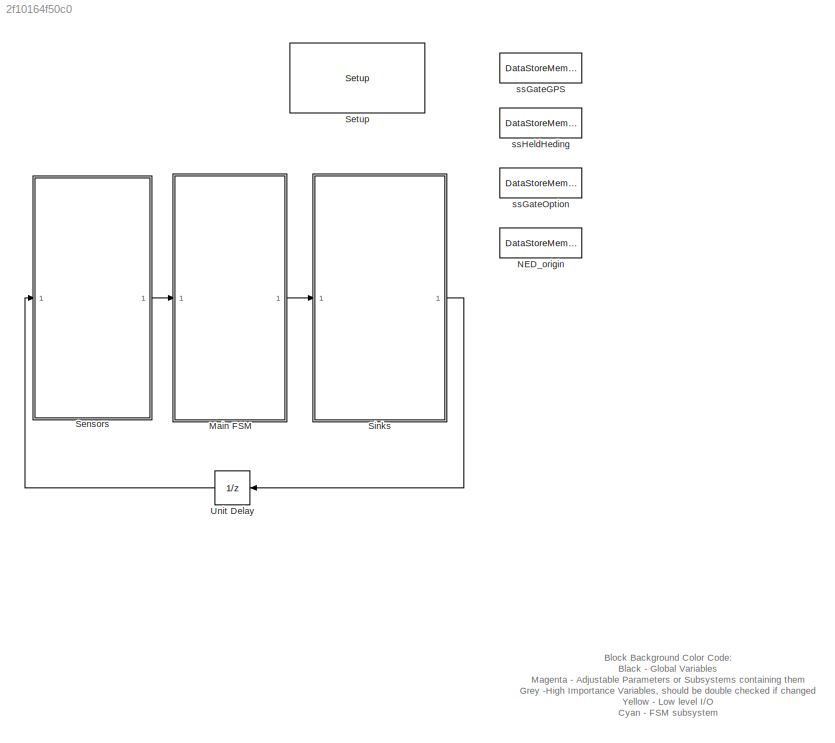
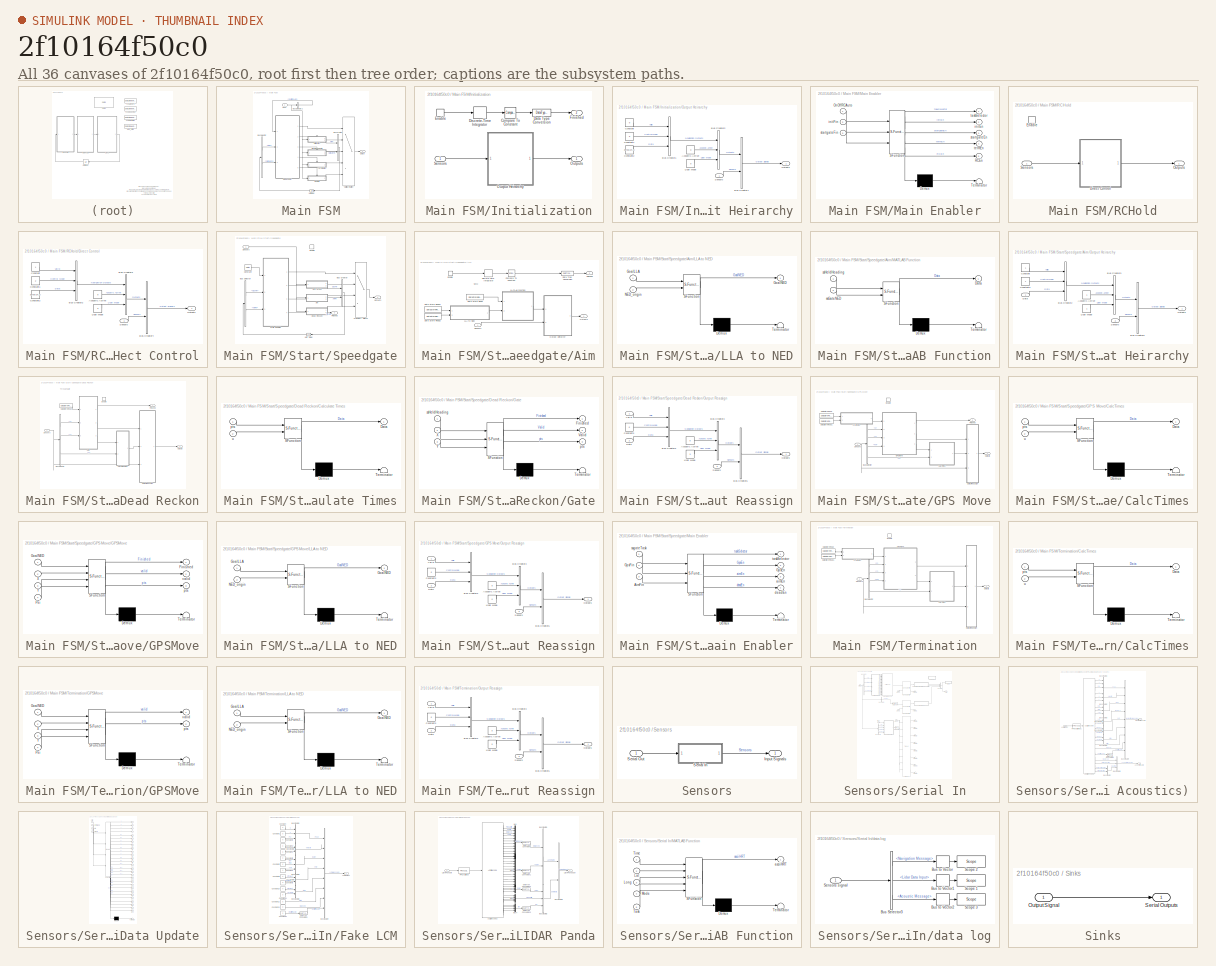
[diagram: thumbnail index - all 36 canvases of the model, root first then tree order]
MODEL slx_2f10164f50c0
KIND model
BLOCK [SubSystem] Main FSM
  Ports = [1, 1]
  RequestExecContextInheritance = off
BLOCK [BusCreator] Main FSM/Bus Creator
  DisplayOption = bar
  Inputs = 2
  Ports = [2, 1]
BLOCK [BusSelector] Main FSM/Bus Selector
  OutputSignals = Init Fin,startgateFin
  Ports = [1, 2]
BLOCK [BusSelector] Main FSM/Bus Selector2
  OutputSignals = Navigation Message.On/Off/RC/Auto
  Ports = [1, 1]
BLOCK [SubSystem] Main FSM/Initialization
  Ports = [1, 2, 1]
  RequestExecContextInheritance = off
BLOCK [Reference] Main FSM/Initialization/Compare To Constant  REF=simulink/Logic and Bit
Operations/Compare
To Constant
  OutDataTypeStr = boolean
  Ports = [1, 1]
  SourceBlock = simulink/Logic and Bit\nOperations/Compare\nTo Constant
  SourceType = Compare To Constant
  ZeroCross = on
  const = 50
  relop = >=
BLOCK [DataTypeConversion] Main FSM/Initialization/Data Type Conversion
  OutDataTypeStr = double
  RndMeth = Floor
  SaturateOnIntegerOverflow = off
BLOCK [DiscreteIntegrator] Main FSM/Initialization/Discrete-Time Integrator
  ICPrevOutput = DiscIntNeverNeededParam
  ICPrevScaledInput = DiscIntNeverNeededParam
  Ports = [1, 1]
  SampleTime = -1
BLOCK [EnablePort] Main FSM/Initialization/Enable
  Ports = [0, 1]
  ShowOutputPort = on
BLOCK [Outport] Main FSM/Initialization/Finished
  IconDisplay = Port number
  Port = 2
BLOCK [SubSystem] Main FSM/Initialization/Output Heirarchy
  Ports = [1, 1]
  RequestExecContextInheritance = off
BLOCK [Constant] Main FSM/Initialization/Output Heirarchy/Acoustic Active
  Value = 0
BLOCK [BusCreator] Main FSM/Initialization/Output Heirarchy/Bus Creator1
  DisplayOption = bar
  Inputs = 3
  Ports = [3, 1]
BLOCK [BusCreator] Main FSM/Initialization/Output Heirarchy/Bus Creator2
  DisplayOption = bar
  Inputs = 3
  Ports = [3, 1]
BLOCK [BusCreator] Main FSM/Initialization/Output Heirarchy/Bus Creator4
  DisplayOption = bar
  Inputs = 2
  Ports = [2, 1]
BLOCK [Constant] Main FSM/Initialization/Output Heirarchy/Constant
  Value = 0
BLOCK [Constant] Main FSM/Initialization/Output Heirarchy/Constant1
  Value = 0
BLOCK [Constant] Main FSM/Initialization/Output Heirarchy/Constant2
  Value = zeros(24,1)
BLOCK [Constant] Main FSM/Initialization/Output Heirarchy/Lidar Mode
  Value = 0
BLOCK [Outport] Main FSM/Initialization/Output Heirarchy/Outputs
  IconDisplay = Port number
BLOCK [Inport] Main FSM/Initialization/Output Heirarchy/Sensors
  IconDisplay = Port number
BLOCK [Outport] Main FSM/Initialization/Outputs
  IconDisplay = Port number
BLOCK [Inport] Main FSM/Initialization/Sensors
  IconDisplay = Port number
BLOCK [Inport] Main FSM/Input
  IconDisplay = Port number
BLOCK [SubSystem] Main FSM/Main Enabler
  ErrorFcn = Stateflow.Translate.translate
  PermitHierarchicalResolution = ExplicitOnly
  Ports = [3, 5]
  RequestExecContextInheritance = off
  SFBlockType = MATLAB Function
  TreatAsAtomicUnit = on
BLOCK [Demux] Main FSM/Main Enabler/ Demux 
  Outputs = 1
  Ports = [1, 1]
BLOCK [S-Function] Main FSM/Main Enabler/ SFunction 
  EnableBusSupport = on
  FunctionName = sf_sfun
  PortCounts = [3 6]
  Ports = [3, 6]
  Tag = Stateflow S-Function RobotX_ssAloneCompleteLCM 13
BLOCK [Terminator] Main FSM/Main Enabler/ Terminator 
BLOCK [Inport] Main FSM/Main Enabler/OnOffRCAuto
  IconDisplay = Port number
BLOCK [Outport] Main FSM/Main Enabler/RCEn
  IconDisplay = Port number
  Port = 5
BLOCK [Outport] Main FSM/Main Enabler/initEn
  IconDisplay = Port number
  Port = 2
BLOCK [Inport] Main FSM/Main Enabler/initFin
  IconDisplay = Port number
  Port = 2
BLOCK [Outport] Main FSM/Main Enabler/startgateEn
  IconDisplay = Port number
  Port = 3
BLOCK [Inport] Main FSM/Main Enabler/startgateFin
  IconDisplay = Port number
  Port = 3
BLOCK [Outport] Main FSM/Main Enabler/taskSelector
  IconDisplay = Port number
BLOCK [Outport] Main FSM/Main Enabler/termEn
  IconDisplay = Port number
  Port = 4
BLOCK [MultiPortSwitch] Main FSM/Multiport Switch
  InputSameDT = off
  Inputs = 4
  Ports = [5, 1]
  SaturateOnIntegerOverflow = off
BLOCK [Outport] Main FSM/Output
  IconDisplay = Port number
BLOCK [SubSystem] Main FSM/RCHold
  Ports = [1, 1, 1]
  RequestExecContextInheritance = off
BLOCK [SubSystem] Main FSM/RCHold/Direct Control
  Ports = [1, 1]
  RequestExecContextInheritance = off
BLOCK [Constant] Main FSM/RCHold/Direct Control/Acoustic Active
  Value = 0
BLOCK [BusCreator] Main FSM/RCHold/Direct Control/Bus Creator2
  DisplayOption = bar
  Inputs = 3
  Ports = [3, 1]
BLOCK [BusCreator] Main FSM/RCHold/Direct Control/Bus Creator3
  DisplayOption = bar
  Inputs = 3
  Ports = [3, 1]
BLOCK [BusCreator] Main FSM/RCHold/Direct Control/Bus Creator4
  DisplayOption = bar
  Inputs = 2
  Ports = [2, 1]
BLOCK [Constant] Main FSM/RCHold/Direct Control/Constant
BLOCK [Constant] Main FSM/RCHold/Direct Control/Constant1
  Value = 2
BLOCK [Constant] Main FSM/RCHold/Direct Control/Constant2
  Value = zeros(24,1)
BLOCK [Constant] Main FSM/RCHold/Direct Control/Lidar Mode
  Value = 3
BLOCK [Outport] Main FSM/RCHold/Direct Control/Outputs
  IconDisplay = Port number
BLOCK [Inport] Main FSM/RCHold/Direct Control/Sensors
  IconDisplay = Port number
BLOCK [EnablePort] Main FSM/RCHold/Enable
  Ports = []
BLOCK [Outport] Main FSM/RCHold/Outputs
  IconDisplay = Port number
BLOCK [Inport] Main FSM/RCHold/Sensors
  IconDisplay = Port number
BLOCK [SubSystem] Main FSM/Start//Speedgate
  Ports = [1, 2, 1]
  RequestExecContextInheritance = off
  TreatAsAtomicUnit = on
BLOCK [SubSystem] Main FSM/Start//Speedgate/Aim
  Ports = [1, 2, 1]
  RequestExecContextInheritance = off
BLOCK [Reference] Main FSM/Start//Speedgate/Aim/Compare To Constant  REF=simulink/Logic and Bit
Operations/Compare
To Constant
  OutDataTypeStr = boolean
  Ports = [1, 1]
  SourceBlock = simulink/Logic and Bit\nOperations/Compare\nTo Constant
  SourceType = Compare To Constant
  ZeroCross = on
  const = 30
  relop = >=
BLOCK [DataStoreRead] Main FSM/Start//Speedgate/Aim/Data Store Read
  DataStoreName = ssHeldHeading
  Ports = [0, 1]
BLOCK [DataStoreRead] Main FSM/Start//Speedgate/Aim/Data Store Read1
  DataStoreName = ssGateGPS
  Ports = [0, 1]
BLOCK [DataStoreRead] Main FSM/Start//Speedgate/Aim/Data Store Read2
  DataStoreName = NED_origin
  Ports = [0, 1]
BLOCK [DataTypeConversion] Main FSM/Start//Speedgate/Aim/Data Type Conversion
  OutDataTypeStr = double
  RndMeth = Floor
  SaturateOnIntegerOverflow = off
BLOCK [DiscreteIntegrator] Main FSM/Start//Speedgate/Aim/Discrete-Time Integrator
  ICPrevOutput = DiscIntNeverNeededParam
  ICPrevScaledInput = DiscIntNeverNeededParam
  Ports = [1, 1]
  SampleTime = -1
BLOCK [EnablePort] Main FSM/Start//Speedgate/Aim/Enable
  Ports = [0, 1]
  ShowOutputPort = on
BLOCK [Outport] Main FSM/Start//Speedgate/Aim/Finished
  IconDisplay = Port number
  Port = 2
BLOCK [SubSystem] Main FSM/Start//Speedgate/Aim/LLA to NED
  ErrorFcn = Stateflow.Translate.translate
  PermitHierarchicalResolution = ExplicitOnly
  Ports = [2, 1]
  RequestExecContextInheritance = off
  SFBlockType = MATLAB Function
  TreatAsAtomicUnit = on
BLOCK [Demux] Main FSM/Start//Speedgate/Aim/LLA to NED/ Demux 
  Outputs = 1
  Ports = [1, 1]
BLOCK [S-Function] Main FSM/Start//Speedgate/Aim/LLA to NED/ SFunction 
  EnableBusSupport = on
  FunctionName = sf_sfun
  PortCounts = [2 2]
  Ports = [2, 2]
  Tag = Stateflow S-Function RobotX_ssAloneCompleteLCM 4
BLOCK [Terminator] Main FSM/Start//Speedgate/Aim/LLA to NED/ Terminator 
BLOCK [Inport] Main FSM/Start//Speedgate/Aim/LLA to NED/GoalLLA
  IconDisplay = Port number
BLOCK [Outport] Main FSM/Start//Speedgate/Aim/LLA to NED/GoalNED
  IconDisplay = Port number
BLOCK [Inport] Main FSM/Start//Speedgate/Aim/LLA to NED/NED_origin
  IconDisplay = Port number
  Port = 2
BLOCK [SubSystem] Main FSM/Start//Speedgate/Aim/MATLAB Function
  ErrorFcn = Stateflow.Translate.translate
  PermitHierarchicalResolution = ExplicitOnly
  Ports = [2, 1]
  RequestExecContextInheritance = off
  SFBlockType = MATLAB Function
  TreatAsAtomicUnit = on
BLOCK [Demux] Main FSM/Start//Speedgate/Aim/MATLAB Function/ Demux 
  Outputs = 1
  Ports = [1, 1]
BLOCK [S-Function] Main FSM/Start//Speedgate/Aim/MATLAB Function/ SFunction 
  EnableBusSupport = on
  FunctionName = sf_sfun
  PortCounts = [2 2]
  Ports = [2, 2]
  Tag = Stateflow S-Function RobotX_ssAloneCompleteLCM 27
BLOCK [Terminator] Main FSM/Start//Speedgate/Aim/MATLAB Function/ Terminator 
BLOCK [Outport] Main FSM/Start//Speedgate/Aim/MATLAB Function/Data
  IconDisplay = Port number
BLOCK [Inport] Main FSM/Start//Speedgate/Aim/MATLAB Function/ssGateNED
  IconDisplay = Port number
  Port = 2
BLOCK [Inport] Main FSM/Start//Speedgate/Aim/MATLAB Function/ssHeldHeading
  IconDisplay = Port number
BLOCK [SubSystem] Main FSM/Start//Speedgate/Aim/Output Heirarchy
  Ports = [2, 1]
  RequestExecContextInheritance = off
BLOCK [Constant] Main FSM/Start//Speedgate/Aim/Output Heirarchy/Acoustic Active
BLOCK [BusCreator] Main FSM/Start//Speedgate/Aim/Output Heirarchy/Bus Creator2
  DisplayOption = bar
  Inputs = 3
  Ports = [3, 1]
BLOCK [BusCreator] Main FSM/Start//Speedgate/Aim/Output Heirarchy/Bus Creator3
  DisplayOption = bar
  Inputs = 3
  Ports = [3, 1]
BLOCK [BusCreator] Main FSM/Start//Speedgate/Aim/Output Heirarchy/Bus Creator5
  DisplayOption = bar
  Inputs = 2
  Ports = [2, 1]
BLOCK [Constant] Main FSM/Start//Speedgate/Aim/Output Heirarchy/Constant
BLOCK [Constant] Main FSM/Start//Speedgate/Aim/Output Heirarchy/Constant3
BLOCK [Inport] Main FSM/Start//Speedgate/Aim/Output Heirarchy/Data
  IconDisplay = Port number
BLOCK [Constant] Main FSM/Start//Speedgate/Aim/Output Heirarchy/Lidar Mode
BLOCK [Outport] Main FSM/Start//Speedgate/Aim/Output Heirarchy/Outputs
  IconDisplay = Port number
BLOCK [Inport] Main FSM/Start//Speedgate/Aim/Output Heirarchy/Sensors
  IconDisplay = Port number
  Port = 2
BLOCK [Outport] Main FSM/Start//Speedgate/Aim/Outputs
  IconDisplay = Port number
BLOCK [Inport] Main FSM/Start//Speedgate/Aim/Sensors
  IconDisplay = Port number
BLOCK [BusCreator] Main FSM/Start//Speedgate/Bus Creator
  DisplayOption = bar
  Inputs = 2
  Ports = [2, 1]
BLOCK [BusSelector] Main FSM/Start//Speedgate/Bus Selector
  OutputSignals = GpsFin,AimFin
  Ports = [1, 2]
BLOCK [Constant] Main FSM/Start//Speedgate/Constant
  Value = uint8(' ')
  VectorParams1D = off
BLOCK [SubSystem] Main FSM/Start//Speedgate/Dead Reckon
  Ports = [1, 2, 1]
  RequestExecContextInheritance = off
  TreatAsAtomicUnit = on
BLOCK [BusSelector] Main FSM/Start//Speedgate/Dead Reckon/Bus Selector
  OutputSignals = Navigation Message.Pose.X,Navigation Message.Pose.Y,Navigation Message.Velocity.u
  Ports = [1, 3]
BLOCK [SubSystem] Main FSM/Start//Speedgate/Dead Reckon/Calculate Times
  ErrorFcn = Stateflow.Translate.translate
  PermitHierarchicalResolution = ExplicitOnly
  Ports = [2, 1]
  RequestExecContextInheritance = off
  SFBlockType = MATLAB Function
  TreatAsAtomicUnit = on
BLOCK [Demux] Main FSM/Start//Speedgate/Dead Reckon/Calculate Times/ Demux 
  Outputs = 1
  Ports = [1, 1]
BLOCK [S-Function] Main FSM/Start//Speedgate/Dead Reckon/Calculate Times/ SFunction 
  EnableBusSupport = on
  FunctionName = sf_sfun
  PortCounts = [2 2]
  Ports = [2, 2]
  Tag = Stateflow S-Function RobotX_ssAloneCompleteLCM 5
BLOCK [Terminator] Main FSM/Start//Speedgate/Dead Reckon/Calculate Times/ Terminator 
BLOCK [Outport] Main FSM/Start//Speedgate/Dead Reckon/Calculate Times/Data
  IconDisplay = Port number
BLOCK [Inport] Main FSM/Start//Speedgate/Dead Reckon/Calculate Times/pts
  IconDisplay = Port number
BLOCK [Inport] Main FSM/Start//Speedgate/Dead Reckon/Calculate Times/u
  IconDisplay = Port number
  Port = 2
BLOCK [DataStoreRead] Main FSM/Start//Speedgate/Dead Reckon/Data Store Read
  DataStoreName = ssHeldHeading
  Ports = [0, 1]
BLOCK [EnablePort] Main FSM/Start//Speedgate/Dead Reckon/Enable
  Ports = []
BLOCK [Outport] Main FSM/Start//Speedgate/Dead Reckon/Finished
  IconDisplay = Port number
  Port = 2
BLOCK [SubSystem] Main FSM/Start//Speedgate/Dead Reckon/Gate
  ErrorFcn = Stateflow.Translate.translate
  PermitHierarchicalResolution = ExplicitOnly
  Ports = [3, 3]
  RequestExecContextInheritance = off
  SFBlockType = MATLAB Function
  TreatAsAtomicUnit = on
BLOCK [Demux] Main FSM/Start//Speedgate/Dead Reckon/Gate/ Demux 
  Outputs = 1
  Ports = [1, 1]
BLOCK [S-Function] Main FSM/Start//Speedgate/Dead Reckon/Gate/ SFunction 
  EnableBusSupport = on
  FunctionName = sf_sfun
  PortCounts = [3 4]
  Ports = [3, 4]
  Tag = Stateflow S-Function RobotX_ssAloneCompleteLCM 6
BLOCK [Terminator] Main FSM/Start//Speedgate/Dead Reckon/Gate/ Terminator 
BLOCK [Outport] Main FSM/Start//Speedgate/Dead Reckon/Gate/Finished
  IconDisplay = Port number
BLOCK [Outport] Main FSM/Start//Speedgate/Dead Reckon/Gate/Valid
  IconDisplay = Port number
  Port = 2
BLOCK [Inport] Main FSM/Start//Speedgate/Dead Reckon/Gate/X
  IconDisplay = Port number
  Port = 2
BLOCK [Inport] Main FSM/Start//Speedgate/Dead Reckon/Gate/Y
  IconDisplay = Port number
  Port = 3
BLOCK [Outport] Main FSM/Start//Speedgate/Dead Reckon/Gate/pts
  IconDisplay = Port number
  Port = 3
BLOCK [Inport] Main FSM/Start//Speedgate/Dead Reckon/Gate/ssHeldHeading
  IconDisplay = Port number
BLOCK [SubSystem] Main FSM/Start//Speedgate/Dead Reckon/Output Reassign
  Ports = [3, 1]
  RequestExecContextInheritance = off
BLOCK [Constant] Main FSM/Start//Speedgate/Dead Reckon/Output Reassign/Acoustic Active
  Value = 0
BLOCK [BusCreator] Main FSM/Start//Speedgate/Dead Reckon/Output Reassign/Bus Creator2
  DisplayOption = bar
  Inputs = 3
  Ports = [3, 1]
BLOCK [BusCreator] Main FSM/Start//Speedgate/Dead Reckon/Output Reassign/Bus Creator3
  DisplayOption = bar
  Inputs = 3
  Ports = [3, 1]
BLOCK [BusCreator] Main FSM/Start//Speedgate/Dead Reckon/Output Reassign/Bus Creator5
  DisplayOption = bar
  Inputs = 2
  Ports = [2, 1]
BLOCK [Constant] Main FSM/Start//Speedgate/Dead Reckon/Output Reassign/Constant3
  Value = 0
BLOCK [Inport] Main FSM/Start//Speedgate/Dead Reckon/Output Reassign/Data
  IconDisplay = Port number
  Port = 2
BLOCK [Constant] Main FSM/Start//Speedgate/Dead Reckon/Output Reassign/Lidar Mode
  Value = 3
BLOCK [Outport] Main FSM/Start//Speedgate/Dead Reckon/Output Reassign/Outputs
  IconDisplay = Port number
BLOCK [Inport] Main FSM/Start//Speedgate/Dead Reckon/Output Reassign/Sensors
  IconDisplay = Port number
  Port = 3
BLOCK [Inport] Main FSM/Start//Speedgate/Dead Reckon/Output Reassign/Vaild
  IconDisplay = Port number
BLOCK [Outport] Main FSM/Start//Speedgate/Dead Reckon/Outputs
  IconDisplay = Port number
BLOCK [Inport] Main FSM/Start//Speedgate/Dead Reckon/Sensors
  IconDisplay = Port number
BLOCK [EnablePort] Main FSM/Start//Speedgate/Enable
  Ports = []
BLOCK [Outport] Main FSM/Start//Speedgate/Finished
  IconDisplay = Port number
  InitialOutput = 0
  Port = 2
BLOCK [SubSystem] Main FSM/Start//Speedgate/GPS Move
  Ports = [1, 2, 1]
  RequestExecContextInheritance = off
BLOCK [BusSelector] Main FSM/Start//Speedgate/GPS Move/Bus Selector
  OutputSignals = Navigation Message.Pose.X,Navigation Message.Pose.Y,Navigation Message.Pose.Psi,Navigation Message.Velocity.u
  Ports = [1, 4]
BLOCK [SubSystem] Main FSM/Start//Speedgate/GPS Move/CalcTimes
  ErrorFcn = Stateflow.Translate.translate
  PermitHierarchicalResolution = ExplicitOnly
  Ports = [2, 1]
  RequestExecContextInheritance = off
  SFBlockType = MATLAB Function
  TreatAsAtomicUnit = on
BLOCK [Demux] Main FSM/Start//Speedgate/GPS Move/CalcTimes/ Demux 
  Outputs = 1
  Ports = [1, 1]
BLOCK [S-Function] Main FSM/Start//Speedgate/GPS Move/CalcTimes/ SFunction 
  EnableBusSupport = on
  FunctionName = sf_sfun
  PortCounts = [2 2]
  Ports = [2, 2]
  Tag = Stateflow S-Function RobotX_ssAloneCompleteLCM 9
BLOCK [Terminator] Main FSM/Start//Speedgate/GPS Move/CalcTimes/ Terminator 
BLOCK [Outport] Main FSM/Start//Speedgate/GPS Move/CalcTimes/Data
  IconDisplay = Port number
BLOCK [Inport] Main FSM/Start//Speedgate/GPS Move/CalcTimes/pts
  IconDisplay = Port number
BLOCK [Inport] Main FSM/Start//Speedgate/GPS Move/CalcTimes/u
  IconDisplay = Port number
  Port = 2
BLOCK [DataStoreRead] Main FSM/Start//Speedgate/GPS Move/Data Store Read
  DataStoreName = ssGateGPS
  Ports = [0, 1]
BLOCK [DataStoreRead] Main FSM/Start//Speedgate/GPS Move/Data Store Read1
  DataStoreName = NED_origin
  Ports = [0, 1]
BLOCK [EnablePort] Main FSM/Start//Speedgate/GPS Move/Enable
  Ports = []
BLOCK [Outport] Main FSM/Start//Speedgate/GPS Move/Finished
  IconDisplay = Port number
  Port = 2
BLOCK [SubSystem] Main FSM/Start//Speedgate/GPS Move/GPSMove
  ErrorFcn = Stateflow.Translate.translate
  PermitHierarchicalResolution = ExplicitOnly
  Ports = [4, 3]
  RequestExecContextInheritance = off
  SFBlockType = MATLAB Function
  TreatAsAtomicUnit = on
BLOCK [Demux] Main FSM/Start//Speedgate/GPS Move/GPSMove/ Demux 
  Outputs = 1
  Ports = [1, 1]
BLOCK [S-Function] Main FSM/Start//Speedgate/GPS Move/GPSMove/ SFunction 
  EnableBusSupport = on
  FunctionName = sf_sfun
  PortCounts = [4 4]
  Ports = [4, 4]
  Tag = Stateflow S-Function RobotX_ssAloneCompleteLCM 10
BLOCK [Terminator] Main FSM/Start//Speedgate/GPS Move/GPSMove/ Terminator 
BLOCK [Outport] Main FSM/Start//Speedgate/GPS Move/GPSMove/Finished
  IconDisplay = Port number
BLOCK [Inport] Main FSM/Start//Speedgate/GPS Move/GPSMove/GoalNED
  IconDisplay = Port number
BLOCK [Inport] Main FSM/Start//Speedgate/GPS Move/GPSMove/Psi
  IconDisplay = Port number
  Port = 4
BLOCK [Inport] Main FSM/Start//Speedgate/GPS Move/GPSMove/X
  IconDisplay = Port number
  Port = 2
BLOCK [Inport] Main FSM/Start//Speedgate/GPS Move/GPSMove/Y
  IconDisplay = Port number
  Port = 3
BLOCK [Outport] Main FSM/Start//Speedgate/GPS Move/GPSMove/pts
  IconDisplay = Port number
  Port = 3
BLOCK [Outport] Main FSM/Start//Speedgate/GPS Move/GPSMove/valid
  IconDisplay = Port number
  Port = 2
BLOCK [SubSystem] Main FSM/Start//Speedgate/GPS Move/LLA to NED
  ErrorFcn = Stateflow.Translate.translate
  PermitHierarchicalResolution = ExplicitOnly
  Ports = [2, 1]
  RequestExecContextInheritance = off
  SFBlockType = MATLAB Function
  TreatAsAtomicUnit = on
BLOCK [Demux] Main FSM/Start//Speedgate/GPS Move/LLA to NED/ Demux 
  Outputs = 1
  Ports = [1, 1]
BLOCK [S-Function] Main FSM/Start//Speedgate/GPS Move/LLA to NED/ SFunction 
  EnableBusSupport = on
  FunctionName = sf_sfun
  PortCounts = [2 2]
  Ports = [2, 2]
  Tag = Stateflow S-Function RobotX_ssAloneCompleteLCM 17
BLOCK [Terminator] Main FSM/Start//Speedgate/GPS Move/LLA to NED/ Terminator 
BLOCK [Inport] Main FSM/Start//Speedgate/GPS Move/LLA to NED/GoalLLA
  IconDisplay = Port number
BLOCK [Outport] Main FSM/Start//Speedgate/GPS Move/LLA to NED/GoalNED
  IconDisplay = Port number
BLOCK [Inport] Main FSM/Start//Speedgate/GPS Move/LLA to NED/NED_origin
  IconDisplay = Port number
  Port = 2
BLOCK [SubSystem] Main FSM/Start//Speedgate/GPS Move/Output Reassign
  Ports = [3, 1]
  RequestExecContextInheritance = off
BLOCK [Constant] Main FSM/Start//Speedgate/GPS Move/Output Reassign/Acoustic Active
  Value = 0
BLOCK [BusCreator] Main FSM/Start//Speedgate/GPS Move/Output Reassign/Bus Creator2
  DisplayOption = bar
  Inputs = 3
  Ports = [3, 1]
BLOCK [BusCreator] Main FSM/Start//Speedgate/GPS Move/Output Reassign/Bus Creator3
  DisplayOption = bar
  Inputs = 3
  Ports = [3, 1]
BLOCK [BusCreator] Main FSM/Start//Speedgate/GPS Move/Output Reassign/Bus Creator5
  DisplayOption = bar
  Inputs = 2
  Ports = [2, 1]
BLOCK [Constant] Main FSM/Start//Speedgate/GPS Move/Output Reassign/Constant3
  Value = 0
BLOCK [Inport] Main FSM/Start//Speedgate/GPS Move/Output Reassign/Data
  IconDisplay = Port number
  Port = 2
BLOCK [Constant] Main FSM/Start//Speedgate/GPS Move/Output Reassign/Lidar Mode
  Value = 0
BLOCK [Outport] Main FSM/Start//Speedgate/GPS Move/Output Reassign/Outputs
  IconDisplay = Port number
BLOCK [Inport] Main FSM/Start//Speedgate/GPS Move/Output Reassign/Sensors
  IconDisplay = Port number
  Port = 3
BLOCK [Inport] Main FSM/Start//Speedgate/GPS Move/Output Reassign/Vaild
  IconDisplay = Port number
BLOCK [Outport] Main FSM/Start//Speedgate/GPS Move/Outputs
  IconDisplay = Port number
BLOCK [Inport] Main FSM/Start//Speedgate/GPS Move/Sensors
  IconDisplay = Port number
BLOCK [SubSystem] Main FSM/Start//Speedgate/Main Enabler
  ErrorFcn = Stateflow.Translate.translate
  PermitHierarchicalResolution = ExplicitOnly
  Ports = [3, 4]
  RequestExecContextInheritance = off
  SFBlockType = MATLAB Function
  TreatAsAtomicUnit = on
BLOCK [Demux] Main FSM/Start//Speedgate/Main Enabler/ Demux 
  Outputs = 1
  Ports = [1, 1]
BLOCK [S-Function] Main FSM/Start//Speedgate/Main Enabler/ SFunction 
  EnableBusSupport = on
  FunctionName = sf_sfun
  PortCounts = [3 5]
  Ports = [3, 5]
  Tag = Stateflow S-Function RobotX_ssAloneCompleteLCM 11
BLOCK [Terminator] Main FSM/Start//Speedgate/Main Enabler/ Terminator 
BLOCK [Inport] Main FSM/Start//Speedgate/Main Enabler/AimFin
  IconDisplay = Port number
  Port = 3
BLOCK [Outport] Main FSM/Start//Speedgate/Main Enabler/GpsEn
  IconDisplay = Port number
  Port = 2
BLOCK [Inport] Main FSM/Start//Speedgate/Main Enabler/GpsFin
  IconDisplay = Port number
  Port = 2
BLOCK [Outport] Main FSM/Start//Speedgate/Main Enabler/aimEn
  IconDisplay = Port number
  Port = 3
BLOCK [Outport] Main FSM/Start//Speedgate/Main Enabler/deadEn
  IconDisplay = Port number
  Port = 4
BLOCK [Inport] Main FSM/Start//Speedgate/Main Enabler/ssgateTask
  IconDisplay = Port number
BLOCK [Outport] Main FSM/Start//Speedgate/Main Enabler/taskSelector
  IconDisplay = Port number
BLOCK [MultiPortSwitch] Main FSM/Start//Speedgate/Multiport Switch
  InputSameDT = off
  Ports = [4, 1]
  SaturateOnIntegerOverflow = off
BLOCK [Outport] Main FSM/Start//Speedgate/Outputs
  IconDisplay = Port number
BLOCK [Inport] Main FSM/Start//Speedgate/Sensors
  IconDisplay = Port number
BLOCK [UnitDelay] Main FSM/Start//Speedgate/Unit Delay
  InputProcessing = Elements as channels (sample based)
  SampleTime = -1
BLOCK [SubSystem] Main FSM/Termination
  Ports = [1, 1, 1]
  RequestExecContextInheritance = off
BLOCK [BusSelector] Main FSM/Termination/Bus Selector
  OutputSignals = Navigation Message.Pose.X,Navigation Message.Pose.Y,Navigation Message.Pose.Psi,Navigation Message.Velocity.u
  Ports = [1, 4]
BLOCK [SubSystem] Main FSM/Termination/CalcTimes
  ErrorFcn = Stateflow.Translate.translate
  PermitHierarchicalResolution = ExplicitOnly
  Ports = [2, 1]
  RequestExecContextInheritance = off
  SFBlockType = MATLAB Function
  TreatAsAtomicUnit = on
BLOCK [Demux] Main FSM/Termination/CalcTimes/ Demux 
  Outputs = 1
  Ports = [1, 1]
BLOCK [S-Function] Main FSM/Termination/CalcTimes/ SFunction 
  EnableBusSupport = on
  FunctionName = sf_sfun
  PortCounts = [2 2]
  Ports = [2, 2]
  Tag = Stateflow S-Function RobotX_ssAloneCompleteLCM 37
BLOCK [Terminator] Main FSM/Termination/CalcTimes/ Terminator 
BLOCK [Outport] Main FSM/Termination/CalcTimes/Data
  IconDisplay = Port number
BLOCK [Inport] Main FSM/Termination/CalcTimes/pts
  IconDisplay = Port number
BLOCK [Inport] Main FSM/Termination/CalcTimes/u
  IconDisplay = Port number
  Port = 2
BLOCK [DataStoreRead] Main FSM/Termination/Data Store Read
  DataStoreName = ssGateGPS
  Ports = [0, 1]
BLOCK [DataStoreRead] Main FSM/Termination/Data Store Read1
  DataStoreName = NED_origin
  Ports = [0, 1]
BLOCK [EnablePort] Main FSM/Termination/Enable
  Ports = []
BLOCK [SubSystem] Main FSM/Termination/GPSMove
  ErrorFcn = Stateflow.Translate.translate
  PermitHierarchicalResolution = ExplicitOnly
  Ports = [4, 2]
  RequestExecContextInheritance = off
  SFBlockType = MATLAB Function
  TreatAsAtomicUnit = on
BLOCK [Demux] Main FSM/Termination/GPSMove/ Demux 
  Outputs = 1
  Ports = [1, 1]
BLOCK [S-Function] Main FSM/Termination/GPSMove/ SFunction 
  EnableBusSupport = on
  FunctionName = sf_sfun
  PortCounts = [4 3]
  Ports = [4, 3]
  Tag = Stateflow S-Function RobotX_ssAloneCompleteLCM 38
BLOCK [Terminator] Main FSM/Termination/GPSMove/ Terminator 
BLOCK [Inport] Main FSM/Termination/GPSMove/GoalNED
  IconDisplay = Port number
BLOCK [Inport] Main FSM/Termination/GPSMove/Psi
  IconDisplay = Port number
  Port = 4
BLOCK [Inport] Main FSM/Termination/GPSMove/X
  IconDisplay = Port number
  Port = 2
BLOCK [Inport] Main FSM/Termination/GPSMove/Y
  IconDisplay = Port number
  Port = 3
BLOCK [Outport] Main FSM/Termination/GPSMove/pts
  IconDisplay = Port number
  Port = 2
BLOCK [Outport] Main FSM/Termination/GPSMove/valid
  IconDisplay = Port number
BLOCK [SubSystem] Main FSM/Termination/LLA to NED
  ErrorFcn = Stateflow.Translate.translate
  PermitHierarchicalResolution = ExplicitOnly
  Ports = [2, 1]
  RequestExecContextInheritance = off
  SFBlockType = MATLAB Function
  TreatAsAtomicUnit = on
BLOCK [Demux] Main FSM/Termination/LLA to NED/ Demux 
  Outputs = 1
  Ports = [1, 1]
BLOCK [S-Function] Main FSM/Termination/LLA to NED/ SFunction 
  EnableBusSupport = on
  FunctionName = sf_sfun
  PortCounts = [2 2]
  Ports = [2, 2]
  Tag = Stateflow S-Function RobotX_ssAloneCompleteLCM 1
BLOCK [Terminator] Main FSM/Termination/LLA to NED/ Terminator 
BLOCK [Inport] Main FSM/Termination/LLA to NED/GoalLLA
  IconDisplay = Port number
BLOCK [Outport] Main FSM/Termination/LLA to NED/GoalNED
  IconDisplay = Port number
BLOCK [Inport] Main FSM/Termination/LLA to NED/NED_origin
  IconDisplay = Port number
  Port = 2
BLOCK [SubSystem] Main FSM/Termination/Output Reassign
  Ports = [3, 1]
  RequestExecContextInheritance = off
BLOCK [Constant] Main FSM/Termination/Output Reassign/Acoustic Active
  Value = 0
BLOCK [BusCreator] Main FSM/Termination/Output Reassign/Bus Creator2
  DisplayOption = bar
  Inputs = 3
  Ports = [3, 1]
BLOCK [BusCreator] Main FSM/Termination/Output Reassign/Bus Creator3
  DisplayOption = bar
  Inputs = 3
  Ports = [3, 1]
BLOCK [BusCreator] Main FSM/Termination/Output Reassign/Bus Creator5
  DisplayOption = bar
  Inputs = 2
  Ports = [2, 1]
BLOCK [Constant] Main FSM/Termination/Output Reassign/Constant3
  Value = 0
BLOCK [Inport] Main FSM/Termination/Output Reassign/Data
  IconDisplay = Port number
  Port = 2
BLOCK [Constant] Main FSM/Termination/Output Reassign/Lidar Mode
  Value = 0
BLOCK [Outport] Main FSM/Termination/Output Reassign/Outputs
  IconDisplay = Port number
BLOCK [Inport] Main FSM/Termination/Output Reassign/Sensors
  IconDisplay = Port number
  Port = 3
BLOCK [Inport] Main FSM/Termination/Output Reassign/Vaild
  IconDisplay = Port number
BLOCK [Outport] Main FSM/Termination/Outputs
  IconDisplay = Port number
BLOCK [Inport] Main FSM/Termination/Sensors
  IconDisplay = Port number
BLOCK [UnitDelay] Main FSM/Unit Delay
  InputProcessing = Elements as channels (sample based)
  SampleTime = -1
BLOCK [DataStoreMemory] NED_origin
  DataStoreName = NED_origin
  InitialValue = [26.016401, -80.122932]
  ReadBeforeWriteMsg = warning
  VectorParams1D = off
  WriteAfterReadMsg = warning
  WriteAfterWriteMsg = warning
BLOCK [SubSystem] Sensors
  Ports = [1, 1]
  RequestExecContextInheritance = off
BLOCK [Outport] Sensors/Input Signals
  IconDisplay = Port number
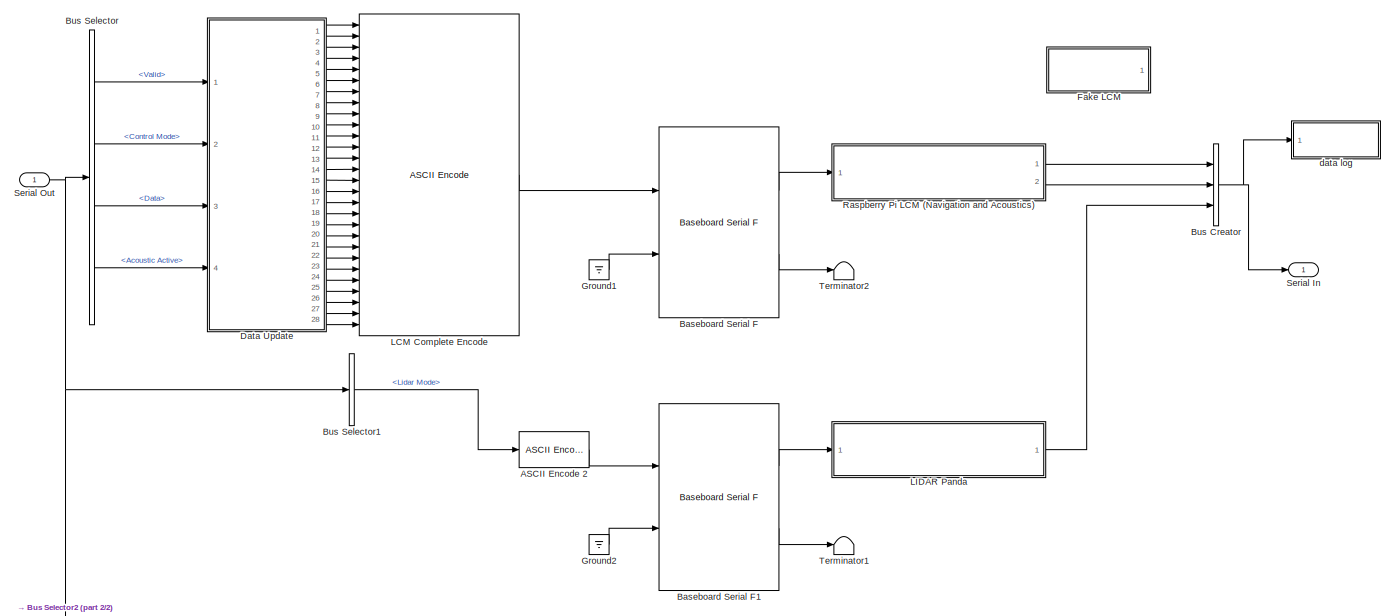
[diagram: Sensors/Serial In - part 1/2, full width, top band]
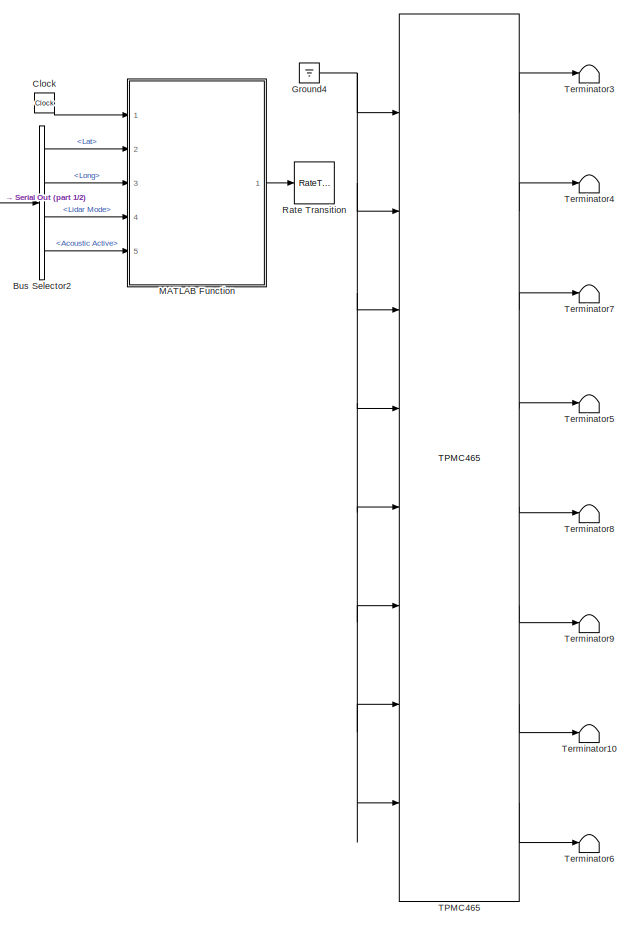
[diagram: Sensors/Serial In - part 2/2, bottom center region]
BLOCK [SubSystem] Sensors/Serial In
  Ports = [1, 1]
  RequestExecContextInheritance = off
BLOCK [SubSystem] Sensors/Serial In/ Raspberry Pi LCM (Navigation and Acoustics)
  Ports = [1, 2]
  RequestExecContextInheritance = off
BLOCK [Reference] Sensors/Serial In/ Raspberry Pi LCM (Navigation and Acoustics)/ASCII Decode 6  REF=xpcseriallib/ASCII Decode 
  Ports = [1, 22]
  SourceBlock = xpcseriallib/ASCII Decode
  SourceType = ASCII Decode
  format = P1:%f P2:%f P3:%f V1:%f V2:%f V3:%f E1:%f E2:%f E3:%f Lat:%f Long:%f Pt1:%f Pt2:%f St1:%f St2:%f Start:%f Elapsed:%f RC:%d Deploy:%u, Elapsed:%g, Bearing1:%g Bearing2:%g \r\n
  nvars = 22
  vartypes = {}
BLOCK [Outport] Sensors/Serial In/ Raspberry Pi LCM (Navigation and Acoustics)/Acoustic LCM
  IconDisplay = Port number
  Port = 2
BLOCK [BusCreator] Sensors/Serial In/ Raspberry Pi LCM (Navigation and Acoustics)/Bus Creator
  DisplayOption = bar
  Inputs = 2
  Ports = [2, 1]
BLOCK [BusCreator] Sensors/Serial In/ Raspberry Pi LCM (Navigation and Acoustics)/Bus Creator1
  DisplayOption = bar
  Inputs = 3
  Ports = [3, 1]
BLOCK [BusCreator] Sensors/Serial In/ Raspberry Pi LCM (Navigation and Acoustics)/Bus Creator2
  DisplayOption = bar
  Inputs = 3
  Ports = [3, 1]
BLOCK [BusCreator] Sensors/Serial In/ Raspberry Pi LCM (Navigation and Acoustics)/Bus Creator3
  DisplayOption = bar
  Inputs = 3
  Ports = [3, 1]
BLOCK [BusCreator] Sensors/Serial In/ Raspberry Pi LCM (Navigation and Acoustics)/Bus Creator4
  DisplayOption = bar
  Inputs = 9
  Ports = [9, 1]
BLOCK [BusCreator] Sensors/Serial In/ Raspberry Pi LCM (Navigation and Acoustics)/Bus Creator5
  DisplayOption = bar
  Inputs = 2
  Ports = [2, 1]
BLOCK [BusCreator] Sensors/Serial In/ Raspberry Pi LCM (Navigation and Acoustics)/Bus Creator6
  DisplayOption = bar
  Inputs = 2
  Ports = [2, 1]
BLOCK [BusCreator] Sensors/Serial In/ Raspberry Pi LCM (Navigation and Acoustics)/Bus Creator7
  DisplayOption = bar
  Inputs = 2
  Ports = [2, 1]
BLOCK [BusCreator] Sensors/Serial In/ Raspberry Pi LCM (Navigation and Acoustics)/Bus Creator8
  DisplayOption = bar
  Inputs = 3
  Ports = [3, 1]
BLOCK [DataTypeConversion] Sensors/Serial In/ Raspberry Pi LCM (Navigation and Acoustics)/Data Type Conversion
  OutDataTypeStr = double
  RndMeth = Floor
  SaturateOnIntegerOverflow = off
BLOCK [Reference] Sensors/Serial In/ Raspberry Pi LCM (Navigation and Acoustics)/FIFO ASCII read 1  REF=xpcseriallib/FIFO ASCII read 
  Ports = [1, 1]
  SourceBlock = xpcseriallib/FIFO ASCII read
  SourceType = Asynchronous FIFO Block: reader
  enable = off
  header = {'P1:'}
  hold = Zero output if no new data
  maxsize = 2048
  outputtype = 8 bit uint null terminated
  sampletime = -1
  term = [13 10]
BLOCK [Inport] Sensors/Serial In/ Raspberry Pi LCM (Navigation and Acoustics)/LCM Input
  IconDisplay = Port number
BLOCK [Outport] Sensors/Serial In/ Raspberry Pi LCM (Navigation and Acoustics)/Navigation LCM
  IconDisplay = Port number
BLOCK [Reference] Sensors/Serial In/ASCII Encode 2  REF=xpcseriallib/ASCII Encode 
  Ports = [1, 1]
  SourceBlock = xpcseriallib/ASCII Encode
  SourceType = ASCII Encode
  format = SGTask:%d \r\n
  maxlength = 128
  nvars = 1
  vartypes = { 'double' }
BLOCK [Reference] Sensors/Serial In/Baseboard Serial F  REF=xpcseriallib/Mainboard/Baseboard
Serial F
  Ports = [2, 2]
  SourceBlock = xpcseriallib/Mainboard/Baseboard\nSerial F
  SourceType = Baseboard RS232 Send Receive
  automode1 = on
  automode2 = on
  baud1 = 115200
  baud2 = 115200
  config = Com1/Com3
  fifomode1 = 64 deep
  fifomode2 = 64 deep
  group = Basic Setup
  irqnum = 4
  ndata1 = 7
  ndata2 = 7
  nstop1 = 1
  nstop2 = 1
  parity1 = Even
  parity2 = Even
  port = 1
  rcvfifosize1 = 1024
  rcvfifosize2 = 1024
  rlevel1 = quarter full
  rlevel2 = 1
  saddr1 = 0x3f8
  saddr2 = 0x3e8
  xmtdatatype1 = 8 bit uint null terminated
  xmtdatatype2 = 8 bit uint null terminated
  xmtfifosize1 = 1024
  xmtfifosize2 = 1024
BLOCK [Reference] Sensors/Serial In/Baseboard Serial F1  REF=xpcseriallib/Mainboard/Baseboard
Serial F
  Ports = [2, 2]
  SourceBlock = xpcseriallib/Mainboard/Baseboard\nSerial F
  SourceType = Baseboard RS232 Send Receive
  automode1 = on
  automode2 = on
  baud1 = 115200
  baud2 = 115200
  config = Com2/Com4
  fifomode1 = 64 deep
  fifomode2 = 64 deep
  group = Basic Setup
  irqnum = 4
  ndata1 = 7
  ndata2 = 7
  nstop1 = 1
  nstop2 = 1
  parity1 = Even
  parity2 = Even
  port = 2
  rcvfifosize1 = 1024
  rcvfifosize2 = 1024
  rlevel1 = quarter full
  rlevel2 = quarter full
  saddr1 = 0x3f8
  saddr2 = 0x3e8
  xmtdatatype1 = 8 bit uint null terminated
  xmtdatatype2 = 8 bit uint null terminated
  xmtfifosize1 = 1024
  xmtfifosize2 = 1024
BLOCK [BusCreator] Sensors/Serial In/Bus Creator
  DisplayOption = bar
  Inputs = 3
  Ports = [3, 1]
BLOCK [BusSelector] Sensors/Serial In/Bus Selector
  OutputSignals = Outputs.Navigation Outputs.Valid,Outputs.Navigation Outputs.Control Mode,Outputs.Navigation Outputs.Data,Outputs.Acoustic Active
  Ports = [1, 4]
BLOCK [BusSelector] Sensors/Serial In/Bus Selector1
  OutputSignals = Outputs.Lidar Mode
  Ports = [1, 1]
BLOCK [BusSelector] Sensors/Serial In/Bus Selector2
  Commented = on
  OutputSignals = Sensors.Navigation Message.GPS (LLA).Lat,Sensors.Navigation Message.GPS (LLA).Long,Outputs.Lidar Mode,Outputs.Acoustic Active
  Ports = [1, 4]
BLOCK [Clock] Sensors/Serial In/Clock
  Commented = on
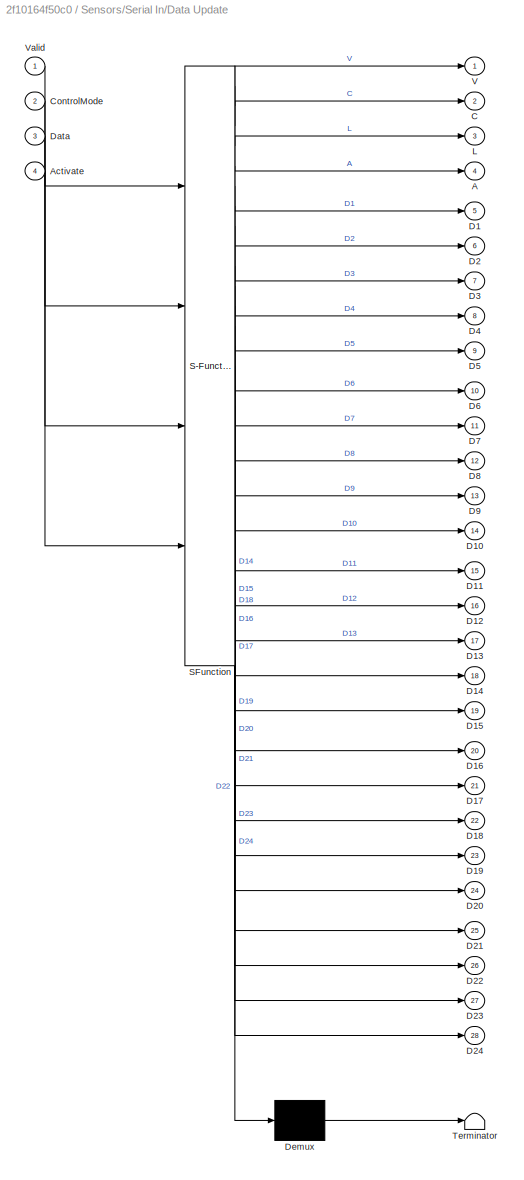
BLOCK [SubSystem] Sensors/Serial In/Data Update
  ErrorFcn = Stateflow.Translate.translate
  PermitHierarchicalResolution = ExplicitOnly
  Ports = [4, 28]
  RequestExecContextInheritance = off
  SFBlockType = MATLAB Function
  TreatAsAtomicUnit = on
BLOCK [Demux] Sensors/Serial In/Data Update/ Demux 
  Outputs = 1
  Ports = [1, 1]
BLOCK [S-Function] Sensors/Serial In/Data Update/ SFunction 
  EnableBusSupport = on
  FunctionName = sf_sfun
  PortCounts = [4 29]
  Ports = [4, 29]
  Tag = Stateflow S-Function RobotX_ssAloneCompleteLCM 3
BLOCK [Terminator] Sensors/Serial In/Data Update/ Terminator 
BLOCK [Outport] Sensors/Serial In/Data Update/A
  IconDisplay = Port number
  Port = 4
BLOCK [Inport] Sensors/Serial In/Data Update/Activate
  IconDisplay = Port number
  Port = 4
BLOCK [Outport] Sensors/Serial In/Data Update/C
  IconDisplay = Port number
  Port = 2
BLOCK [Inport] Sensors/Serial In/Data Update/ControlMode
  IconDisplay = Port number
  Port = 2
BLOCK [Outport] Sensors/Serial In/Data Update/D1
  IconDisplay = Port number
  Port = 5
BLOCK [Outport] Sensors/Serial In/Data Update/D10
  IconDisplay = Port number
  Port = 14
BLOCK [Outport] Sensors/Serial In/Data Update/D11
  IconDisplay = Port number
  Port = 15
BLOCK [Outport] Sensors/Serial In/Data Update/D12
  IconDisplay = Port number
  Port = 16
BLOCK [Outport] Sensors/Serial In/Data Update/D13
  IconDisplay = Port number
  Port = 17
BLOCK [Outport] Sensors/Serial In/Data Update/D14
  IconDisplay = Port number
  Port = 18
BLOCK [Outport] Sensors/Serial In/Data Update/D15
  IconDisplay = Port number
  Port = 19
BLOCK [Outport] Sensors/Serial In/Data Update/D16
  IconDisplay = Port number
  Port = 20
BLOCK [Outport] Sensors/Serial In/Data Update/D17
  IconDisplay = Port number
  Port = 21
BLOCK [Outport] Sensors/Serial In/Data Update/D18
  IconDisplay = Port number
  Port = 22
BLOCK [Outport] Sensors/Serial In/Data Update/D19
  IconDisplay = Port number
  Port = 23
BLOCK [Outport] Sensors/Serial In/Data Update/D2
  IconDisplay = Port number
  Port = 6
BLOCK [Outport] Sensors/Serial In/Data Update/D20
  IconDisplay = Port number
  Port = 24
BLOCK [Outport] Sensors/Serial In/Data Update/D21
  IconDisplay = Port number
  Port = 25
BLOCK [Outport] Sensors/Serial In/Data Update/D22
  IconDisplay = Port number
  Port = 26
BLOCK [Outport] Sensors/Serial In/Data Update/D23
  IconDisplay = Port number
  Port = 27
BLOCK [Outport] Sensors/Serial In/Data Update/D24
  IconDisplay = Port number
  Port = 28
BLOCK [Outport] Sensors/Serial In/Data Update/D3
  IconDisplay = Port number
  Port = 7
BLOCK [Outport] Sensors/Serial In/Data Update/D4
  IconDisplay = Port number
  Port = 8
BLOCK [Outport] Sensors/Serial In/Data Update/D5
  IconDisplay = Port number
  Port = 9
BLOCK [Outport] Sensors/Serial In/Data Update/D6
  IconDisplay = Port number
  Port = 10
BLOCK [Outport] Sensors/Serial In/Data Update/D7
  IconDisplay = Port number
  Port = 11
BLOCK [Outport] Sensors/Serial In/Data Update/D8
  IconDisplay = Port number
  Port = 12
BLOCK [Outport] Sensors/Serial In/Data Update/D9
  IconDisplay = Port number
  Port = 13
BLOCK [Inport] Sensors/Serial In/Data Update/Data
  IconDisplay = Port number
  Port = 3
BLOCK [Outport] Sensors/Serial In/Data Update/L
  IconDisplay = Port number
  Port = 3
BLOCK [Outport] Sensors/Serial In/Data Update/V
  IconDisplay = Port number
BLOCK [Inport] Sensors/Serial In/Data Update/Valid
  IconDisplay = Port number
BLOCK [SubSystem] Sensors/Serial In/Fake LCM
  Commented = on
  Ports = [0, 1]
  RequestExecContextInheritance = off
BLOCK [BusCreator] Sensors/Serial In/Fake LCM/Bus Creator1
  DisplayOption = bar
  Inputs = 3
  Ports = [3, 1]
BLOCK [BusCreator] Sensors/Serial In/Fake LCM/Bus Creator2
  DisplayOption = bar
  Inputs = 2
  Ports = [2, 1]
BLOCK [BusCreator] Sensors/Serial In/Fake LCM/Bus Creator3
  DisplayOption = bar
  Inputs = 3
  Ports = [3, 1]
BLOCK [BusCreator] Sensors/Serial In/Fake LCM/Bus Creator4
  DisplayOption = bar
  Inputs = 8
  Ports = [8, 1]
BLOCK [BusCreator] Sensors/Serial In/Fake LCM/Bus Creator5
  DisplayOption = bar
  Inputs = 2
  Ports = [2, 1]
BLOCK [BusCreator] Sensors/Serial In/Fake LCM/Bus Creator6
  DisplayOption = bar
  Inputs = 2
  Ports = [2, 1]
BLOCK [Constant] Sensors/Serial In/Fake LCM/Constant
  Value = 0
BLOCK [Constant] Sensors/Serial In/Fake LCM/Constant1
  Value = 0
BLOCK [Constant] Sensors/Serial In/Fake LCM/Constant10
  Value = 0
BLOCK [Constant] Sensors/Serial In/Fake LCM/Constant11
  Value = 0
BLOCK [Constant] Sensors/Serial In/Fake LCM/Constant12
  Value = 0
BLOCK [Constant] Sensors/Serial In/Fake LCM/Constant13
  Value = 0
BLOCK [Constant] Sensors/Serial In/Fake LCM/Constant14
  Value = 3
BLOCK [Constant] Sensors/Serial In/Fake LCM/Constant2
  Value = 0
BLOCK [Constant] Sensors/Serial In/Fake LCM/Constant3
  Value = 0
BLOCK [Constant] Sensors/Serial In/Fake LCM/Constant4
  Value = 0
BLOCK [Constant] Sensors/Serial In/Fake LCM/Constant5
  Value = 0
BLOCK [Constant] Sensors/Serial In/Fake LCM/Constant6
  Value = 0
BLOCK [Constant] Sensors/Serial In/Fake LCM/Constant7
  Value = 0
BLOCK [Constant] Sensors/Serial In/Fake LCM/Constant8
  Value = 0
BLOCK [Constant] Sensors/Serial In/Fake LCM/Constant9
  Value = 0
BLOCK [DataTypeConversion] Sensors/Serial In/Fake LCM/Data Type Conversion
  OutDataTypeStr = double
  RndMeth = Floor
  SaturateOnIntegerOverflow = off
BLOCK [Outport] Sensors/Serial In/Fake LCM/LCM Output
  IconDisplay = Port number
BLOCK [Ground] Sensors/Serial In/Ground1
BLOCK [Ground] Sensors/Serial In/Ground2
BLOCK [Ground] Sensors/Serial In/Ground4
BLOCK [Reference] Sensors/Serial In/LCM Complete Encode  REF=xpcseriallib/ASCII Encode 
  Ports = [28, 1]
  SourceBlock = xpcseriallib/ASCII Encode
  SourceType = ASCII Encode
  format = {"Valid":%d, "Mode":%d, "Length":%d, "Activate":%d, "A":%f, "B":%f, "C":%f, "D":%f, "E":%f, "F":%f, "G":%f, "H":%f, "I":%f, "J":%f, "K":%f, "L":%f, "M":%f, "N":%f, "O":%f, "P":%f, "Q":%f, "R":%f, "S":%f, "T":%f, "U":%f, "V":%f, "W":%f, "X":%f} \r\n
  maxlength = 1500
  nvars = 28
  vartypes = { 'double' }
BLOCK [SubSystem] Sensors/Serial In/LIDAR Panda
  Ports = [1, 1]
  RequestExecContextInheritance = off
BLOCK [Reference] Sensors/Serial In/LIDAR Panda/ASCII Decode 2  REF=xpcseriallib/ASCII Decode 
  Ports = [1, 36]
  SourceBlock = xpcseriallib/ASCII Decode
  SourceType = ASCII Decode
  format = A:%d B:%d C:%d E:%d F:%d G:%d H:%d I:%d J:%d K:%d L:%d M:%d N:%d O:%d P:%d Q:%d R:%d S:%d T:%d U:%d V:%d W:%d X:%d C1:%d C2:%d C3:%d C4:%d P1:%f P2:%f P3:%f P4:%f I1:%d I2:%d I3:%d I4:%d \r\n
  nvars = 36
  vartypes = {}
BLOCK [BusCreator] Sensors/Serial In/LIDAR Panda/Bus Creator1
  DisplayOption = bar
  Inputs = 2
  Ports = [2, 1]
BLOCK [BusCreator] Sensors/Serial In/LIDAR Panda/Bus Creator2
  DisplayOption = bar
  Inputs = 3
  Ports = [3, 1]
BLOCK [BusCreator] Sensors/Serial In/LIDAR Panda/Bus Creator3
  DisplayOption = bar
  Inputs = 2
  Ports = [2, 1]
BLOCK [DataTypeConversion] Sensors/Serial In/LIDAR Panda/Data Type Conversion
  OutDataTypeStr = double
  RndMeth = Floor
  SaturateOnIntegerOverflow = off
BLOCK [DataTypeConversion] Sensors/Serial In/LIDAR Panda/Data Type Conversion1
  OutDataTypeStr = double
  RndMeth = Floor
  SaturateOnIntegerOverflow = off
BLOCK [DataTypeConversion] Sensors/Serial In/LIDAR Panda/Data Type Conversion2
  OutDataTypeStr = double
  RndMeth = Floor
  SaturateOnIntegerOverflow = off
BLOCK [DataTypeConversion] Sensors/Serial In/LIDAR Panda/Data Type Conversion3
  OutDataTypeStr = double
  RndMeth = Floor
  SaturateOnIntegerOverflow = off
BLOCK [Reference] Sensors/Serial In/LIDAR Panda/FIFO ASCII read   REF=xpcseriallib/FIFO ASCII read 
  Ports = [1, 1]
  SourceBlock = xpcseriallib/FIFO ASCII read
  SourceType = Asynchronous FIFO Block: reader
  enable = off
  header = {'A:'}
  hold = Zero output if no new data
  maxsize = 1024
  outputtype = 8 bit uint null terminated
  sampletime = -1
  term = [13 10]
BLOCK [Inport] Sensors/Serial In/LIDAR Panda/LIDAR Panda In
  IconDisplay = Port number
BLOCK [Outport] Sensors/Serial In/LIDAR Panda/LIDAR Panda Out
  IconDisplay = Port number
BLOCK [Mux] Sensors/Serial In/LIDAR Panda/Mux
  DisplayOption = bar
  Inputs = 12
  Ports = [12, 1]
BLOCK [Mux] Sensors/Serial In/LIDAR Panda/Mux1
  DisplayOption = bar
  Ports = [4, 1]
BLOCK [Mux] Sensors/Serial In/LIDAR Panda/Mux2
  DisplayOption = bar
  Inputs = 12
  Ports = [12, 1]
BLOCK [Mux] Sensors/Serial In/LIDAR Panda/Mux3
  DisplayOption = bar
  Ports = [4, 1]
BLOCK [Mux] Sensors/Serial In/LIDAR Panda/Mux4
  DisplayOption = bar
  Ports = [4, 1]
BLOCK [SubSystem] Sensors/Serial In/MATLAB Function
  Commented = on
  ErrorFcn = Stateflow.Translate.translate
  PermitHierarchicalResolution = ExplicitOnly
  Ports = [5, 1]
  RequestExecContextInheritance = off
  SFBlockType = MATLAB Function
  TreatAsAtomicUnit = on
BLOCK [Demux] Sensors/Serial In/MATLAB Function/ Demux 
  Outputs = 1
  Ports = [1, 1]
BLOCK [S-Function] Sensors/Serial In/MATLAB Function/ SFunction 
  EnableBusSupport = on
  FunctionName = sf_sfun
  PortCounts = [5 2]
  Ports = [5, 2]
  Tag = Stateflow S-Function RobotX_ssAloneCompleteLCM 2
BLOCK [Terminator] Sensors/Serial In/MATLAB Function/ Terminator 
BLOCK [Inport] Sensors/Serial In/MATLAB Function/Lat
  IconDisplay = Port number
  Port = 2
BLOCK [Inport] Sensors/Serial In/MATLAB Function/Long
  IconDisplay = Port number
  Port = 3
BLOCK [Inport] Sensors/Serial In/MATLAB Function/Mode
  IconDisplay = Port number
  Port = 4
BLOCK [Inport] Sensors/Serial In/MATLAB Function/Task
  IconDisplay = Port number
  Port = 5
BLOCK [Inport] Sensors/Serial In/MATLAB Function/Time
  IconDisplay = Port number
BLOCK [Outport] Sensors/Serial In/MATLAB Function/asciiHRT
  IconDisplay = Port number
BLOCK [RateTransition] Sensors/Serial In/Rate Transition
  Commented = on
  Deterministic = off
  OutPortSampleTime = 1
BLOCK [Outport] Sensors/Serial In/Serial In
  IconDisplay = Port number
BLOCK [Inport] Sensors/Serial In/Serial Out
  IconDisplay = Port number
BLOCK [Reference] Sensors/Serial In/TPMC465  REF=speedgoatlib/IO504/TPMC465  (lib defined in mdl_2b10c7445f81, mdl_649b3eec89a6, +4 more)
  Ports = [8, 8]
  SourceBlock = speedgoatlib/IO504/TPMC465
  SourceType = sendreceive_IO504
  baud1 = 115200
  baud2 = 115200
  baud3 = 115200
  baud4 = 115200
  baud5 = 115200
  baud6 = 115200
  baud7 = 115200
  baud8 = 115200
  bauddivisor1 = 1
  bauddivisor2 = 1
  bauddivisor3 = 1
  bauddivisor4 = 1
  bauddivisor5 = 1
  bauddivisor6 = 1
  bauddivisor7 = 1
  bauddivisor8 = 1
  group = Basic Setup
  hwmode1 = none
  hwmode2 = none
  hwmode3 = none
  hwmode4 = none
  hwmode5 = none
  hwmode6 = none
  hwmode7 = none
  hwmode8 = none
  irqnum = 9
  ndata1 = 7
  ndata2 = 8
  ndata3 = 8
  ndata4 = 8
  ndata5 = 8
  ndata6 = 8
  ndata7 = 8
  ndata8 = 8
  nstop1 = 1
  nstop2 = 1
  nstop3 = 1
  nstop4 = 1
  nstop5 = 1
  nstop6 = 1
  nstop7 = 1
  nstop8 = 1
  parity1 = Even
  parity2 = None
  parity3 = None
  parity4 = None
  parity5 = None
  parity6 = None
  parity7 = None
  parity8 = None
  port = 2
  prescale1 = off
  prescale2 = off
  prescale3 = off
  prescale4 = off
  prescale5 = off
  prescale6 = off
  prescale7 = off
  prescale8 = off
  rcvfifosize1 = 1024
  rcvfifosize2 = 1024
  rcvfifosize3 = 1024
  rcvfifosize4 = 1024
  rcvfifosize5 = 1024
  rcvfifosize6 = 1024
  rcvfifosize7 = 1024
  rcvfifosize8 = 1024
  rlevel1 = half full (32)
  rlevel2 = half full (32)
  rlevel3 = half full (32)
  rlevel4 = half full (32)
  rlevel5 = 1
  rlevel6 = 1
  rlevel7 = 1
  rlevel8 = 1
  rs485auto1 = off
  rs485auto2 = off
  rs485auto3 = off
  rs485auto4 = off
  rs485auto5 = off
  rs485auto6 = off
  rs485auto7 = off
  rs485auto8 = off
  rs485delay1 = 0
  rs485delay2 = 0
  rs485delay3 = 0
  rs485delay4 = 0
  rs485delay5 = 0
  rs485delay6 = 0
  rs485delay7 = 0
  rs485delay8 = 0
  sampling1 = 16x (standard)
  sampling2 = 16x (standard)
  sampling3 = 16x (standard)
  sampling4 = 16x (standard)
  sampling5 = 16x (standard)
  sampling6 = 16x (standard)
  sampling7 = 16x (standard)
  sampling8 = 16x (standard)
  slot = -1
  standard1 = on
  standard2 = on
  standard3 = on
  standard4 = on
  standard5 = on
  standard6 = on
  standard7 = on
  standard8 = on
  swmode1 = none
  swmode2 = none
  swmode3 = none
  swmode4 = none
  swmode5 = none
  swmode6 = none
  swmode7 = none
  swmode8 = none
  transceiver1 = RS232 (max 921.6kb/s)
  transceiver2 = RS232 (max 921.6kb/s)
  transceiver3 = RS232 (max 921.6kb/s)
  transceiver4 = RS232 (max 921.6kb/s)
  transceiver5 = RS232 (max 921.6kb/s)
  transceiver6 = RS232 (max 921.6kb/s)
  transceiver7 = RS232 (max 921.6kb/s)
  transceiver8 = RS232 (max 921.6kb/s)
  xmtdatatype1 = 8 bit uint null terminated
  xmtdatatype2 = 8 bit uint null terminated
  xmtdatatype3 = 8 bit uint null terminated
  xmtdatatype4 = 8 bit uint null terminated
  xmtdatatype5 = 8 bit uint null terminated
  xmtdatatype6 = 8 bit uint null terminated
  xmtdatatype7 = 8 bit uint null terminated
  xmtdatatype8 = 8 bit uint null terminated
  xmtfifosize1 = 1024
  xmtfifosize2 = 1024
  xmtfifosize3 = 1024
  xmtfifosize4 = 1024
  xmtfifosize5 = 1024
  xmtfifosize6 = 1024
  xmtfifosize7 = 1024
  xmtfifosize8 = 1024
  xoffchar1 = 19
  xoffchar2 = 19
  xoffchar3 = 19
  xoffchar4 = 19
  xoffchar5 = 19
  xoffchar6 = 19
  xoffchar7 = 19
  xoffchar8 = 19
  xonchar1 = 17
  xonchar2 = 17
  xonchar3 = 17
  xonchar4 = 17
  xonchar5 = 17
  xonchar6 = 17
  xonchar7 = 17
  xonchar8 = 17
BLOCK [Terminator] Sensors/Serial In/Terminator1
BLOCK [Terminator] Sensors/Serial In/Terminator10
BLOCK [Terminator] Sensors/Serial In/Terminator2
BLOCK [Terminator] Sensors/Serial In/Terminator3
BLOCK [Terminator] Sensors/Serial In/Terminator4
BLOCK [Terminator] Sensors/Serial In/Terminator5
BLOCK [Terminator] Sensors/Serial In/Terminator6
BLOCK [Terminator] Sensors/Serial In/Terminator7
BLOCK [Terminator] Sensors/Serial In/Terminator8
BLOCK [Terminator] Sensors/Serial In/Terminator9
BLOCK [SubSystem] Sensors/Serial In/data log
  Ports = [1]
  RequestExecContextInheritance = off
BLOCK [BusSelector] Sensors/Serial In/data log/Bus Selector3
  OutputSignals = Navigation Message,Lidar Data Input,Acoustic Message
  Ports = [1, 3]
BLOCK [BusToVector] Sensors/Serial In/data log/Bus to Vector
BLOCK [BusToVector] Sensors/Serial In/data log/Bus to Vector1
BLOCK [BusToVector] Sensors/Serial In/data log/Bus to Vector2
BLOCK [Reference] Sensors/Serial In/data log/Scope 1  REF=slrtlib/Displays and
Logging/Scope 
  Ports = [1]
  SourceBlock = slrtlib/Displays and\nLogging/Scope
  SourceType = xpcscopeblock
  autorestart = on
  autostart = on
  dynamicfilemode = on
  filename = LM2_<%%%>1.dat
  formatstr = '%15.6f'
  grid = on
  interleave = 1
  maxwritefilesize = 512*1024^2
  mode = Lazy
  noprepostsamples = 0
  nosamples = 28800
  scopeno = 4
  scopetype = File
  triggerlevel = 0.0
  triggermode = FreeRun
  triggersample = 0
  triggerscope = 1
  triggersignal = 1
  triggerslope = Either
  trigsignalfromport = off
  viewmode = Graphical redraw
  writesize = 512
  ylimits = [0,0]
BLOCK [Reference] Sensors/Serial In/data log/Scope 2  REF=slrtlib/Displays and
Logging/Scope 
  Ports = [1]
  SourceBlock = slrtlib/Displays and\nLogging/Scope
  SourceType = xpcscopeblock
  autorestart = on
  autostart = on
  dynamicfilemode = on
  filename = NAV2_<%%%>1.dat
  formatstr = '%15.6f'
  grid = on
  interleave = 1
  maxwritefilesize = 512*1024^2
  mode = Lazy
  noprepostsamples = 0
  nosamples = 28800
  scopeno = 3
  scopetype = File
  triggerlevel = 0.0
  triggermode = FreeRun
  triggersample = 0
  triggerscope = 1
  triggersignal = 1
  triggerslope = Either
  trigsignalfromport = off
  viewmode = Graphical redraw
  writesize = 512
  ylimits = [0,0]
BLOCK [Reference] Sensors/Serial In/data log/Scope 3  REF=slrtlib/Displays and
Logging/Scope 
  Ports = [1]
  SourceBlock = slrtlib/Displays and\nLogging/Scope
  SourceType = xpcscopeblock
  autorestart = on
  autostart = on
  dynamicfilemode = on
  filename = ACO2_<%%%>1.dat
  formatstr = '%15.6f'
  grid = on
  interleave = 1
  maxwritefilesize = 512*1024^2
  mode = Lazy
  noprepostsamples = 0
  nosamples = 28800
  scopeno = 2
  scopetype = File
  triggerlevel = 0.0
  triggermode = FreeRun
  triggersample = 0
  triggerscope = 1
  triggersignal = 1
  triggerslope = Either
  trigsignalfromport = off
  viewmode = Graphical redraw
  writesize = 512
  ylimits = [0,0]
BLOCK [Inport] Sensors/Serial In/data log/Sensors signal
  IconDisplay = Port number
BLOCK [Inport] Sensors/Serial Out
  IconDisplay = Port number
BLOCK [Reference] Setup  REF=speedgoatlib_IO102/Setup
  Ports = []
  SourceBlock = speedgoatlib_IO102/Setup
  SourceType = setup_IO102
  adChannel = 16
  adChannelMode = Multiple-channel (enter number of channels below)
  adCoupling = Differential
  cal = off
  daChannel = [1,2,3,4]
  daInitValue = [0]
  daReset = [1]
  diChannel = [1,2,3,4,5,6,7,8]
  doChannel = [1,2,3,4,5,6,7,8]
  doInitValue = [0]
  doReset = [1]
  group = Digital output setup
  id = 1
  pciSlot = -1
  range = +-5V
BLOCK [SubSystem] Sinks
  Ports = [1, 1]
  RequestExecContextInheritance = off
BLOCK [Inport] Sinks/Output Signal
  IconDisplay = Port number
BLOCK [Outport] Sinks/Serial Outputs
  IconDisplay = Port number
BLOCK [UnitDelay] Unit Delay
  InputProcessing = Elements as channels (sample based)
  SampleTime = -1
BLOCK [DataStoreMemory] ssGateGPS
  DataStoreName = ssGateGPS
  InitialValue = [26.0165, -80.1216]
  ReadBeforeWriteMsg = warning
  VectorParams1D = off
  WriteAfterReadMsg = warning
  WriteAfterWriteMsg = warning
BLOCK [DataStoreMemory] ssGateOption
  DataStoreName = ssGateOption
  ReadBeforeWriteMsg = warning
  VectorParams1D = off
  WriteAfterReadMsg = warning
  WriteAfterWriteMsg = warning
BLOCK [DataStoreMemory] ssHeldHeding
  DataStoreName = ssHeldHeading
  InitialValue = 30
  ReadBeforeWriteMsg = warning
  WriteAfterReadMsg = warning
  WriteAfterWriteMsg = warning
ANNOTATION (root): Block Background Color Code: Black - Global Variables Magenta - Adjustable Parameters or Subsystems containing them Grey -High Importance Variables, should be double checked if changed Yellow - Low level I/O Cyan - FSM subsystem Light Blue - Conditional Selector Block Dark Green - Task Enablers Orange - Output Selectors Green - Signal Bussing Blocks Red - Logic blocks. Determine signals for output...<+28ch>
ANNOTATION Main FSM/Start//Speedgate/Aim: Signal
ANNOTATION Main FSM/Start//Speedgate/Dead Reckon: Through Gate
LINE Main FSM/Bus Creator:1 -> Main FSM/Unit Delay:1
LINE Main FSM/Bus Selector2:1 -> Main FSM/Main Enabler:1
LINE Main FSM/Bus Selector:1 -> Main FSM/Main Enabler:2
LINE Main FSM/Bus Selector:2 -> Main FSM/Main Enabler:3
LINE Main FSM/Initialization/Compare To Constant:1 -> Main FSM/Initialization/Data Type Conversion:1
LINE Main FSM/Initialization/Data Type Conversion:1 -> Main FSM/Initialization/Finished:1
LINE Main FSM/Initialization/Discrete-Time Integrator:1 -> Main FSM/Initialization/Compare To Constant:1
LINE Main FSM/Initialization/Enable:1 -> Main FSM/Initialization/Discrete-Time Integrator:1
LINE Main FSM/Initialization/Output Heirarchy/Acoustic Active:1 -> Main FSM/Initialization/Output Heirarchy/Bus Creator2:2
LINE Main FSM/Initialization/Output Heirarchy/Bus Creator1:1 -> Main FSM/Initialization/Output Heirarchy/Bus Creator2:1
LINE Main FSM/Initialization/Output Heirarchy/Bus Creator2:1 -> Main FSM/Initialization/Output Heirarchy/Bus Creator4:1
LINE Main FSM/Initialization/Output Heirarchy/Bus Creator4:1 -> Main FSM/Initialization/Output Heirarchy/Outputs:1
LINE Main FSM/Initialization/Output Heirarchy/Constant1:1 -> Main FSM/Initialization/Output Heirarchy/Bus Creator1:2
LINE Main FSM/Initialization/Output Heirarchy/Constant2:1 -> Main FSM/Initialization/Output Heirarchy/Bus Creator1:3
LINE Main FSM/Initialization/Output Heirarchy/Constant:1 -> Main FSM/Initialization/Output Heirarchy/Bus Creator1:1
LINE Main FSM/Initialization/Output Heirarchy/Lidar Mode:1 -> Main FSM/Initialization/Output Heirarchy/Bus Creator2:3
LINE Main FSM/Initialization/Output Heirarchy/Sensors:1 -> Main FSM/Initialization/Output Heirarchy/Bus Creator4:2
LINE Main FSM/Initialization/Output Heirarchy:1 -> Main FSM/Initialization/Outputs:1
LINE Main FSM/Initialization/Sensors:1 -> Main FSM/Initialization/Output Heirarchy:1
LINE Main FSM/Initialization:1 -> Main FSM/Multiport Switch:2
LINE Main FSM/Initialization:2 -> Main FSM/Bus Creator:1
NET Main FSM/Input:1 -> Main FSM/Bus Selector2:1, Main FSM/Initialization:1, Main FSM/RCHold:1, Main FSM/Start//Speedgate:1, Main FSM/Termination:1
LINE Main FSM/Main Enabler:1 -> Main FSM/Multiport Switch:1
LINE Main FSM/Main Enabler:2 -> Main FSM/Initialization:enable
LINE Main FSM/Main Enabler:3 -> Main FSM/Start//Speedgate:enable
LINE Main FSM/Main Enabler:4 -> Main FSM/Termination:enable
LINE Main FSM/Main Enabler:5 -> Main FSM/RCHold:enable
LINE Main FSM/Multiport Switch:1 -> Main FSM/Output:1
LINE Main FSM/RCHold/Direct Control/Acoustic Active:1 -> Main FSM/RCHold/Direct Control/Bus Creator3:2
LINE Main FSM/RCHold/Direct Control/Bus Creator2:1 -> Main FSM/RCHold/Direct Control/Bus Creator3:1
LINE Main FSM/RCHold/Direct Control/Bus Creator3:1 -> Main FSM/RCHold/Direct Control/Bus Creator4:1
LINE Main FSM/RCHold/Direct Control/Bus Creator4:1 -> Main FSM/RCHold/Direct Control/Outputs:1
LINE Main FSM/RCHold/Direct Control/Constant1:1 -> Main FSM/RCHold/Direct Control/Bus Creator2:2
LINE Main FSM/RCHold/Direct Control/Constant2:1 -> Main FSM/RCHold/Direct Control/Bus Creator2:3
LINE Main FSM/RCHold/Direct Control/Constant:1 -> Main FSM/RCHold/Direct Control/Bus Creator2:1
LINE Main FSM/RCHold/Direct Control/Lidar Mode:1 -> Main FSM/RCHold/Direct Control/Bus Creator3:3
LINE Main FSM/RCHold/Direct Control/Sensors:1 -> Main FSM/RCHold/Direct Control/Bus Creator4:2
LINE Main FSM/RCHold/Direct Control:1 -> Main FSM/RCHold/Outputs:1
LINE Main FSM/RCHold/Sensors:1 -> Main FSM/RCHold/Direct Control:1
LINE Main FSM/RCHold:1 -> Main FSM/Multiport Switch:5
LINE Main FSM/Start//Speedgate/Aim/Compare To Constant:1 -> Main FSM/Start//Speedgate/Aim/Data Type Conversion:1
LINE Main FSM/Start//Speedgate/Aim/Data Store Read1:1 -> Main FSM/Start//Speedgate/Aim/LLA to NED:1
LINE Main FSM/Start//Speedgate/Aim/Data Store Read2:1 -> Main FSM/Start//Speedgate/Aim/LLA to NED:2
LINE Main FSM/Start//Speedgate/Aim/Data Store Read:1 -> Main FSM/Start//Speedgate/Aim/MATLAB Function:1
LINE Main FSM/Start//Speedgate/Aim/Data Type Conversion:1 -> Main FSM/Start//Speedgate/Aim/Finished:1
LINE Main FSM/Start//Speedgate/Aim/Discrete-Time Integrator:1 -> Main FSM/Start//Speedgate/Aim/Compare To Constant:1
LINE Main FSM/Start//Speedgate/Aim/Enable:1 -> Main FSM/Start//Speedgate/Aim/Discrete-Time Integrator:1
LINE Main FSM/Start//Speedgate/Aim/LLA to NED:1 -> Main FSM/Start//Speedgate/Aim/MATLAB Function:2
LINE Main FSM/Start//Speedgate/Aim/MATLAB Function:1 -> Main FSM/Start//Speedgate/Aim/Output Heirarchy:1
LINE Main FSM/Start//Speedgate/Aim/Output Heirarchy/Acoustic Active:1 -> Main FSM/Start//Speedgate/Aim/Output Heirarchy/Bus Creator3:2
LINE Main FSM/Start//Speedgate/Aim/Output Heirarchy/Bus Creator2:1 -> Main FSM/Start//Speedgate/Aim/Output Heirarchy/Bus Creator3:1
LINE Main FSM/Start//Speedgate/Aim/Output Heirarchy/Bus Creator3:1 -> Main FSM/Start//Speedgate/Aim/Output Heirarchy/Bus Creator5:1
LINE Main FSM/Start//Speedgate/Aim/Output Heirarchy/Bus Creator5:1 -> Main FSM/Start//Speedgate/Aim/Output Heirarchy/Outputs:1
LINE Main FSM/Start//Speedgate/Aim/Output Heirarchy/Constant3:1 -> Main FSM/Start//Speedgate/Aim/Output Heirarchy/Bus Creator2:2
LINE Main FSM/Start//Speedgate/Aim/Output Heirarchy/Constant:1 -> Main FSM/Start//Speedgate/Aim/Output Heirarchy/Bus Creator2:1
LINE Main FSM/Start//Speedgate/Aim/Output Heirarchy/Data:1 -> Main FSM/Start//Speedgate/Aim/Output Heirarchy/Bus Creator2:3
LINE Main FSM/Start//Speedgate/Aim/Output Heirarchy/Lidar Mode:1 -> Main FSM/Start//Speedgate/Aim/Output Heirarchy/Bus Creator3:3
LINE Main FSM/Start//Speedgate/Aim/Output Heirarchy/Sensors:1 -> Main FSM/Start//Speedgate/Aim/Output Heirarchy/Bus Creator5:2
LINE Main FSM/Start//Speedgate/Aim/Output Heirarchy:1 -> Main FSM/Start//Speedgate/Aim/Outputs:1
LINE Main FSM/Start//Speedgate/Aim/Sensors:1 -> Main FSM/Start//Speedgate/Aim/Output Heirarchy:2
LINE Main FSM/Start//Speedgate/Aim:1 -> Main FSM/Start//Speedgate/Multiport Switch:3
LINE Main FSM/Start//Speedgate/Aim:2 -> Main FSM/Start//Speedgate/Bus Creator:2
LINE Main FSM/Start//Speedgate/Bus Creator:1 -> Main FSM/Start//Speedgate/Unit Delay:1
LINE Main FSM/Start//Speedgate/Bus Selector:1 -> Main FSM/Start//Speedgate/Main Enabler:2
LINE Main FSM/Start//Speedgate/Bus Selector:2 -> Main FSM/Start//Speedgate/Main Enabler:3
LINE Main FSM/Start//Speedgate/Constant:1 -> Main FSM/Start//Speedgate/Main Enabler:1
LINE Main FSM/Start//Speedgate/Dead Reckon/Bus Selector:1 -> Main FSM/Start//Speedgate/Dead Reckon/Gate:2
LINE Main FSM/Start//Speedgate/Dead Reckon/Bus Selector:2 -> Main FSM/Start//Speedgate/Dead Reckon/Gate:3
LINE Main FSM/Start//Speedgate/Dead Reckon/Bus Selector:3 -> Main FSM/Start//Speedgate/Dead Reckon/Calculate Times:2
LINE Main FSM/Start//Speedgate/Dead Reckon/Calculate Times:1 -> Main FSM/Start//Speedgate/Dead Reckon/Output Reassign:2
LINE Main FSM/Start//Speedgate/Dead Reckon/Data Store Read:1 -> Main FSM/Start//Speedgate/Dead Reckon/Gate:1
LINE Main FSM/Start//Speedgate/Dead Reckon/Gate:1 -> Main FSM/Start//Speedgate/Dead Reckon/Finished:1
LINE Main FSM/Start//Speedgate/Dead Reckon/Gate:2 -> Main FSM/Start//Speedgate/Dead Reckon/Output Reassign:1
LINE Main FSM/Start//Speedgate/Dead Reckon/Gate:3 -> Main FSM/Start//Speedgate/Dead Reckon/Calculate Times:1
LINE Main FSM/Start//Speedgate/Dead Reckon/Output Reassign/Acoustic Active:1 -> Main FSM/Start//Speedgate/Dead Reckon/Output Reassign/Bus Creator3:2
LINE Main FSM/Start//Speedgate/Dead Reckon/Output Reassign/Bus Creator2:1 -> Main FSM/Start//Speedgate/Dead Reckon/Output Reassign/Bus Creator3:1
LINE Main FSM/Start//Speedgate/Dead Reckon/Output Reassign/Bus Creator3:1 -> Main FSM/Start//Speedgate/Dead Reckon/Output Reassign/Bus Creator5:1
LINE Main FSM/Start//Speedgate/Dead Reckon/Output Reassign/Bus Creator5:1 -> Main FSM/Start//Speedgate/Dead Reckon/Output Reassign/Outputs:1
LINE Main FSM/Start//Speedgate/Dead Reckon/Output Reassign/Constant3:1 -> Main FSM/Start//Speedgate/Dead Reckon/Output Reassign/Bus Creator2:2
LINE Main FSM/Start//Speedgate/Dead Reckon/Output Reassign/Data:1 -> Main FSM/Start//Speedgate/Dead Reckon/Output Reassign/Bus Creator2:3
LINE Main FSM/Start//Speedgate/Dead Reckon/Output Reassign/Lidar Mode:1 -> Main FSM/Start//Speedgate/Dead Reckon/Output Reassign/Bus Creator3:3
LINE Main FSM/Start//Speedgate/Dead Reckon/Output Reassign/Sensors:1 -> Main FSM/Start//Speedgate/Dead Reckon/Output Reassign/Bus Creator5:2
LINE Main FSM/Start//Speedgate/Dead Reckon/Output Reassign/Vaild:1 -> Main FSM/Start//Speedgate/Dead Reckon/Output Reassign/Bus Creator2:1
LINE Main FSM/Start//Speedgate/Dead Reckon/Output Reassign:1 -> Main FSM/Start//Speedgate/Dead Reckon/Outputs:1
NET Main FSM/Start//Speedgate/Dead Reckon/Sensors:1 -> Main FSM/Start//Speedgate/Dead Reckon/Bus Selector:1, Main FSM/Start//Speedgate/Dead Reckon/Output Reassign:3
LINE Main FSM/Start//Speedgate/Dead Reckon:1 -> Main FSM/Start//Speedgate/Multiport Switch:4
LINE Main FSM/Start//Speedgate/Dead Reckon:2 -> Main FSM/Start//Speedgate/Finished:1
LINE Main FSM/Start//Speedgate/GPS Move/Bus Selector:1 -> Main FSM/Start//Speedgate/GPS Move/GPSMove:2
LINE Main FSM/Start//Speedgate/GPS Move/Bus Selector:2 -> Main FSM/Start//Speedgate/GPS Move/GPSMove:3
LINE Main FSM/Start//Speedgate/GPS Move/Bus Selector:3 -> Main FSM/Start//Speedgate/GPS Move/GPSMove:4
LINE Main FSM/Start//Speedgate/GPS Move/Bus Selector:4 -> Main FSM/Start//Speedgate/GPS Move/CalcTimes:2
LINE Main FSM/Start//Speedgate/GPS Move/CalcTimes:1 -> Main FSM/Start//Speedgate/GPS Move/Output Reassign:2
LINE Main FSM/Start//Speedgate/GPS Move/Data Store Read1:1 -> Main FSM/Start//Speedgate/GPS Move/LLA to NED:2
LINE Main FSM/Start//Speedgate/GPS Move/Data Store Read:1 -> Main FSM/Start//Speedgate/GPS Move/LLA to NED:1
LINE Main FSM/Start//Speedgate/GPS Move/GPSMove:1 -> Main FSM/Start//Speedgate/GPS Move/Finished:1
LINE Main FSM/Start//Speedgate/GPS Move/GPSMove:2 -> Main FSM/Start//Speedgate/GPS Move/Output Reassign:1
LINE Main FSM/Start//Speedgate/GPS Move/GPSMove:3 -> Main FSM/Start//Speedgate/GPS Move/CalcTimes:1
LINE Main FSM/Start//Speedgate/GPS Move/LLA to NED:1 -> Main FSM/Start//Speedgate/GPS Move/GPSMove:1
LINE Main FSM/Start//Speedgate/GPS Move/Output Reassign/Acoustic Active:1 -> Main FSM/Start//Speedgate/GPS Move/Output Reassign/Bus Creator3:2
LINE Main FSM/Start//Speedgate/GPS Move/Output Reassign/Bus Creator2:1 -> Main FSM/Start//Speedgate/GPS Move/Output Reassign/Bus Creator3:1
LINE Main FSM/Start//Speedgate/GPS Move/Output Reassign/Bus Creator3:1 -> Main FSM/Start//Speedgate/GPS Move/Output Reassign/Bus Creator5:1
LINE Main FSM/Start//Speedgate/GPS Move/Output Reassign/Bus Creator5:1 -> Main FSM/Start//Speedgate/GPS Move/Output Reassign/Outputs:1
LINE Main FSM/Start//Speedgate/GPS Move/Output Reassign/Constant3:1 -> Main FSM/Start//Speedgate/GPS Move/Output Reassign/Bus Creator2:2
LINE Main FSM/Start//Speedgate/GPS Move/Output Reassign/Data:1 -> Main FSM/Start//Speedgate/GPS Move/Output Reassign/Bus Creator2:3
LINE Main FSM/Start//Speedgate/GPS Move/Output Reassign/Lidar Mode:1 -> Main FSM/Start//Speedgate/GPS Move/Output Reassign/Bus Creator3:3
LINE Main FSM/Start//Speedgate/GPS Move/Output Reassign/Sensors:1 -> Main FSM/Start//Speedgate/GPS Move/Output Reassign/Bus Creator5:2
LINE Main FSM/Start//Speedgate/GPS Move/Output Reassign/Vaild:1 -> Main FSM/Start//Speedgate/GPS Move/Output Reassign/Bus Creator2:1
LINE Main FSM/Start//Speedgate/GPS Move/Output Reassign:1 -> Main FSM/Start//Speedgate/GPS Move/Outputs:1
NET Main FSM/Start//Speedgate/GPS Move/Sensors:1 -> Main FSM/Start//Speedgate/GPS Move/Bus Selector:1, Main FSM/Start//Speedgate/GPS Move/Output Reassign:3
LINE Main FSM/Start//Speedgate/GPS Move:1 -> Main FSM/Start//Speedgate/Multiport Switch:2
LINE Main FSM/Start//Speedgate/GPS Move:2 -> Main FSM/Start//Speedgate/Bus Creator:1
LINE Main FSM/Start//Speedgate/Main Enabler:1 -> Main FSM/Start//Speedgate/Multiport Switch:1
LINE Main FSM/Start//Speedgate/Main Enabler:2 -> Main FSM/Start//Speedgate/GPS Move:enable
LINE Main FSM/Start//Speedgate/Main Enabler:3 -> Main FSM/Start//Speedgate/Aim:enable
LINE Main FSM/Start//Speedgate/Main Enabler:4 -> Main FSM/Start//Speedgate/Dead Reckon:enable
LINE Main FSM/Start//Speedgate/Multiport Switch:1 -> Main FSM/Start//Speedgate/Outputs:1
NET Main FSM/Start//Speedgate/Sensors:1 -> Main FSM/Start//Speedgate/Aim:1, Main FSM/Start//Speedgate/Dead Reckon:1, Main FSM/Start//Speedgate/GPS Move:1
LINE Main FSM/Start//Speedgate/Unit Delay:1 -> Main FSM/Start//Speedgate/Bus Selector:1
LINE Main FSM/Start//Speedgate:1 -> Main FSM/Multiport Switch:3
LINE Main FSM/Start//Speedgate:2 -> Main FSM/Bus Creator:2
LINE Main FSM/Termination/Bus Selector:1 -> Main FSM/Termination/GPSMove:2
LINE Main FSM/Termination/Bus Selector:2 -> Main FSM/Termination/GPSMove:3
LINE Main FSM/Termination/Bus Selector:3 -> Main FSM/Termination/GPSMove:4
LINE Main FSM/Termination/Bus Selector:4 -> Main FSM/Termination/CalcTimes:2
LINE Main FSM/Termination/CalcTimes:1 -> Main FSM/Termination/Output Reassign:2
LINE Main FSM/Termination/Data Store Read1:1 -> Main FSM/Termination/LLA to NED:2
LINE Main FSM/Termination/Data Store Read:1 -> Main FSM/Termination/LLA to NED:1
LINE Main FSM/Termination/GPSMove:1 -> Main FSM/Termination/Output Reassign:1
LINE Main FSM/Termination/GPSMove:2 -> Main FSM/Termination/CalcTimes:1
LINE Main FSM/Termination/LLA to NED:1 -> Main FSM/Termination/GPSMove:1
LINE Main FSM/Termination/Output Reassign/Acoustic Active:1 -> Main FSM/Termination/Output Reassign/Bus Creator3:2
LINE Main FSM/Termination/Output Reassign/Bus Creator2:1 -> Main FSM/Termination/Output Reassign/Bus Creator3:1
LINE Main FSM/Termination/Output Reassign/Bus Creator3:1 -> Main FSM/Termination/Output Reassign/Bus Creator5:1
LINE Main FSM/Termination/Output Reassign/Bus Creator5:1 -> Main FSM/Termination/Output Reassign/Outputs:1
LINE Main FSM/Termination/Output Reassign/Constant3:1 -> Main FSM/Termination/Output Reassign/Bus Creator2:2
LINE Main FSM/Termination/Output Reassign/Data:1 -> Main FSM/Termination/Output Reassign/Bus Creator2:3
LINE Main FSM/Termination/Output Reassign/Lidar Mode:1 -> Main FSM/Termination/Output Reassign/Bus Creator3:3
LINE Main FSM/Termination/Output Reassign/Sensors:1 -> Main FSM/Termination/Output Reassign/Bus Creator5:2
LINE Main FSM/Termination/Output Reassign/Vaild:1 -> Main FSM/Termination/Output Reassign/Bus Creator2:1
LINE Main FSM/Termination/Output Reassign:1 -> Main FSM/Termination/Outputs:1
NET Main FSM/Termination/Sensors:1 -> Main FSM/Termination/Bus Selector:1, Main FSM/Termination/Output Reassign:3
LINE Main FSM/Termination:1 -> Main FSM/Multiport Switch:4
LINE Main FSM/Unit Delay:1 -> Main FSM/Bus Selector:1
LINE Main FSM:1 -> Sinks:1
LINE Sensors/Serial In/ Raspberry Pi LCM (Navigation and Acoustics)/ASCII Decode 6:1 -> Sensors/Serial In/ Raspberry Pi LCM (Navigation and Acoustics)/Bus Creator1:1
LINE Sensors/Serial In/ Raspberry Pi LCM (Navigation and Acoustics)/ASCII Decode 6:10 -> Sensors/Serial In/ Raspberry Pi LCM (Navigation and Acoustics)/Bus Creator7:1
LINE Sensors/Serial In/ Raspberry Pi LCM (Navigation and Acoustics)/ASCII Decode 6:11 -> Sensors/Serial In/ Raspberry Pi LCM (Navigation and Acoustics)/Bus Creator7:2
LINE Sensors/Serial In/ Raspberry Pi LCM (Navigation and Acoustics)/ASCII Decode 6:12 -> Sensors/Serial In/ Raspberry Pi LCM (Navigation and Acoustics)/Bus Creator5:1
LINE Sensors/Serial In/ Raspberry Pi LCM (Navigation and Acoustics)/ASCII Decode 6:13 -> Sensors/Serial In/ Raspberry Pi LCM (Navigation and Acoustics)/Bus Creator5:2
LINE Sensors/Serial In/ Raspberry Pi LCM (Navigation and Acoustics)/ASCII Decode 6:14 -> Sensors/Serial In/ Raspberry Pi LCM (Navigation and Acoustics)/Bus Creator6:1
LINE Sensors/Serial In/ Raspberry Pi LCM (Navigation and Acoustics)/ASCII Decode 6:15 -> Sensors/Serial In/ Raspberry Pi LCM (Navigation and Acoustics)/Bus Creator6:2
LINE Sensors/Serial In/ Raspberry Pi LCM (Navigation and Acoustics)/ASCII Decode 6:16 -> Sensors/Serial In/ Raspberry Pi LCM (Navigation and Acoustics)/Bus Creator4:7
LINE Sensors/Serial In/ Raspberry Pi LCM (Navigation and Acoustics)/ASCII Decode 6:17 -> Sensors/Serial In/ Raspberry Pi LCM (Navigation and Acoustics)/Bus Creator4:8
LINE Sensors/Serial In/ Raspberry Pi LCM (Navigation and Acoustics)/ASCII Decode 6:18 -> Sensors/Serial In/ Raspberry Pi LCM (Navigation and Acoustics)/Data Type Conversion:1
LINE Sensors/Serial In/ Raspberry Pi LCM (Navigation and Acoustics)/ASCII Decode 6:19 -> Sensors/Serial In/ Raspberry Pi LCM (Navigation and Acoustics)/Bus Creator8:1
LINE Sensors/Serial In/ Raspberry Pi LCM (Navigation and Acoustics)/ASCII Decode 6:2 -> Sensors/Serial In/ Raspberry Pi LCM (Navigation and Acoustics)/Bus Creator1:2
LINE Sensors/Serial In/ Raspberry Pi LCM (Navigation and Acoustics)/ASCII Decode 6:20 -> Sensors/Serial In/ Raspberry Pi LCM (Navigation and Acoustics)/Bus Creator8:2
LINE Sensors/Serial In/ Raspberry Pi LCM (Navigation and Acoustics)/ASCII Decode 6:21 -> Sensors/Serial In/ Raspberry Pi LCM (Navigation and Acoustics)/Bus Creator:1
LINE Sensors/Serial In/ Raspberry Pi LCM (Navigation and Acoustics)/ASCII Decode 6:22 -> Sensors/Serial In/ Raspberry Pi LCM (Navigation and Acoustics)/Bus Creator:2
LINE Sensors/Serial In/ Raspberry Pi LCM (Navigation and Acoustics)/ASCII Decode 6:3 -> Sensors/Serial In/ Raspberry Pi LCM (Navigation and Acoustics)/Bus Creator1:3
LINE Sensors/Serial In/ Raspberry Pi LCM (Navigation and Acoustics)/ASCII Decode 6:4 -> Sensors/Serial In/ Raspberry Pi LCM (Navigation and Acoustics)/Bus Creator2:1
LINE Sensors/Serial In/ Raspberry Pi LCM (Navigation and Acoustics)/ASCII Decode 6:5 -> Sensors/Serial In/ Raspberry Pi LCM (Navigation and Acoustics)/Bus Creator2:2
LINE Sensors/Serial In/ Raspberry Pi LCM (Navigation and Acoustics)/ASCII Decode 6:6 -> Sensors/Serial In/ Raspberry Pi LCM (Navigation and Acoustics)/Bus Creator2:3
LINE Sensors/Serial In/ Raspberry Pi LCM (Navigation and Acoustics)/ASCII Decode 6:7 -> Sensors/Serial In/ Raspberry Pi LCM (Navigation and Acoustics)/Bus Creator3:1
LINE Sensors/Serial In/ Raspberry Pi LCM (Navigation and Acoustics)/ASCII Decode 6:8 -> Sensors/Serial In/ Raspberry Pi LCM (Navigation and Acoustics)/Bus Creator3:2
LINE Sensors/Serial In/ Raspberry Pi LCM (Navigation and Acoustics)/ASCII Decode 6:9 -> Sensors/Serial In/ Raspberry Pi LCM (Navigation and Acoustics)/Bus Creator3:3
LINE Sensors/Serial In/ Raspberry Pi LCM (Navigation and Acoustics)/Bus Creator1:1 -> Sensors/Serial In/ Raspberry Pi LCM (Navigation and Acoustics)/Bus Creator4:1
LINE Sensors/Serial In/ Raspberry Pi LCM (Navigation and Acoustics)/Bus Creator2:1 -> Sensors/Serial In/ Raspberry Pi LCM (Navigation and Acoustics)/Bus Creator4:2
LINE Sensors/Serial In/ Raspberry Pi LCM (Navigation and Acoustics)/Bus Creator3:1 -> Sensors/Serial In/ Raspberry Pi LCM (Navigation and Acoustics)/Bus Creator4:3
LINE Sensors/Serial In/ Raspberry Pi LCM (Navigation and Acoustics)/Bus Creator4:1 -> Sensors/Serial In/ Raspberry Pi LCM (Navigation and Acoustics)/Navigation LCM:1
LINE Sensors/Serial In/ Raspberry Pi LCM (Navigation and Acoustics)/Bus Creator5:1 -> Sensors/Serial In/ Raspberry Pi LCM (Navigation and Acoustics)/Bus Creator4:5
LINE Sensors/Serial In/ Raspberry Pi LCM (Navigation and Acoustics)/Bus Creator6:1 -> Sensors/Serial In/ Raspberry Pi LCM (Navigation and Acoustics)/Bus Creator4:6
LINE Sensors/Serial In/ Raspberry Pi LCM (Navigation and Acoustics)/Bus Creator7:1 -> Sensors/Serial In/ Raspberry Pi LCM (Navigation and Acoustics)/Bus Creator4:4
LINE Sensors/Serial In/ Raspberry Pi LCM (Navigation and Acoustics)/Bus Creator8:1 -> Sensors/Serial In/ Raspberry Pi LCM (Navigation and Acoustics)/Acoustic LCM:1
LINE Sensors/Serial In/ Raspberry Pi LCM (Navigation and Acoustics)/Bus Creator:1 -> Sensors/Serial In/ Raspberry Pi LCM (Navigation and Acoustics)/Bus Creator8:3
LINE Sensors/Serial In/ Raspberry Pi LCM (Navigation and Acoustics)/Data Type Conversion:1 -> Sensors/Serial In/ Raspberry Pi LCM (Navigation and Acoustics)/Bus Creator4:9
LINE Sensors/Serial In/ Raspberry Pi LCM (Navigation and Acoustics)/FIFO ASCII read 1:1 -> Sensors/Serial In/ Raspberry Pi LCM (Navigation and Acoustics)/ASCII Decode 6:1
LINE Sensors/Serial In/ Raspberry Pi LCM (Navigation and Acoustics)/LCM Input:1 -> Sensors/Serial In/ Raspberry Pi LCM (Navigation and Acoustics)/FIFO ASCII read 1:1
LINE Sensors/Serial In/ Raspberry Pi LCM (Navigation and Acoustics):1 -> Sensors/Serial In/Bus Creator:1
LINE Sensors/Serial In/ Raspberry Pi LCM (Navigation and Acoustics):2 -> Sensors/Serial In/Bus Creator:2
LINE Sensors/Serial In/ASCII Encode 2:1 -> Sensors/Serial In/Baseboard Serial F1:1
LINE Sensors/Serial In/Baseboard Serial F1:1 -> Sensors/Serial In/LIDAR Panda:1
LINE Sensors/Serial In/Baseboard Serial F1:2 -> Sensors/Serial In/Terminator1:1
LINE Sensors/Serial In/Baseboard Serial F:1 -> Sensors/Serial In/ Raspberry Pi LCM (Navigation and Acoustics):1
LINE Sensors/Serial In/Baseboard Serial F:2 -> Sensors/Serial In/Terminator2:1
NET Sensors/Serial In/Bus Creator:1 -> Sensors/Serial In/Serial In:1, Sensors/Serial In/data log:1
LINE Sensors/Serial In/Bus Selector1:1 -> Sensors/Serial In/ASCII Encode 2:1
LINE Sensors/Serial In/Bus Selector2:1 -> Sensors/Serial In/MATLAB Function:2
LINE Sensors/Serial In/Bus Selector2:2 -> Sensors/Serial In/MATLAB Function:3
LINE Sensors/Serial In/Bus Selector2:3 -> Sensors/Serial In/MATLAB Function:4
LINE Sensors/Serial In/Bus Selector2:4 -> Sensors/Serial In/MATLAB Function:5
LINE Sensors/Serial In/Bus Selector:1 -> Sensors/Serial In/Data Update:1
LINE Sensors/Serial In/Bus Selector:2 -> Sensors/Serial In/Data Update:2
LINE Sensors/Serial In/Bus Selector:3 -> Sensors/Serial In/Data Update:3
LINE Sensors/Serial In/Bus Selector:4 -> Sensors/Serial In/Data Update:4
LINE Sensors/Serial In/Clock:1 -> Sensors/Serial In/MATLAB Function:1
LINE Sensors/Serial In/Data Update:1 -> Sensors/Serial In/LCM Complete Encode:1
LINE Sensors/Serial In/Data Update:10 -> Sensors/Serial In/LCM Complete Encode:10
LINE Sensors/Serial In/Data Update:11 -> Sensors/Serial In/LCM Complete Encode:11
LINE Sensors/Serial In/Data Update:12 -> Sensors/Serial In/LCM Complete Encode:12
LINE Sensors/Serial In/Data Update:13 -> Sensors/Serial In/LCM Complete Encode:13
LINE Sensors/Serial In/Data Update:14 -> Sensors/Serial In/LCM Complete Encode:14
LINE Sensors/Serial In/Data Update:15 -> Sensors/Serial In/LCM Complete Encode:15
LINE Sensors/Serial In/Data Update:16 -> Sensors/Serial In/LCM Complete Encode:16
LINE Sensors/Serial In/Data Update:17 -> Sensors/Serial In/LCM Complete Encode:17
LINE Sensors/Serial In/Data Update:18 -> Sensors/Serial In/LCM Complete Encode:18
LINE Sensors/Serial In/Data Update:19 -> Sensors/Serial In/LCM Complete Encode:19
LINE Sensors/Serial In/Data Update:2 -> Sensors/Serial In/LCM Complete Encode:2
LINE Sensors/Serial In/Data Update:20 -> Sensors/Serial In/LCM Complete Encode:20
LINE Sensors/Serial In/Data Update:21 -> Sensors/Serial In/LCM Complete Encode:21
LINE Sensors/Serial In/Data Update:22 -> Sensors/Serial In/LCM Complete Encode:22
LINE Sensors/Serial In/Data Update:23 -> Sensors/Serial In/LCM Complete Encode:23
LINE Sensors/Serial In/Data Update:24 -> Sensors/Serial In/LCM Complete Encode:24
LINE Sensors/Serial In/Data Update:25 -> Sensors/Serial In/LCM Complete Encode:25
LINE Sensors/Serial In/Data Update:26 -> Sensors/Serial In/LCM Complete Encode:26
LINE Sensors/Serial In/Data Update:27 -> Sensors/Serial In/LCM Complete Encode:27
LINE Sensors/Serial In/Data Update:28 -> Sensors/Serial In/LCM Complete Encode:28
LINE Sensors/Serial In/Data Update:3 -> Sensors/Serial In/LCM Complete Encode:3
LINE Sensors/Serial In/Data Update:4 -> Sensors/Serial In/LCM Complete Encode:4
LINE Sensors/Serial In/Data Update:5 -> Sensors/Serial In/LCM Complete Encode:5
LINE Sensors/Serial In/Data Update:6 -> Sensors/Serial In/LCM Complete Encode:6
LINE Sensors/Serial In/Data Update:7 -> Sensors/Serial In/LCM Complete Encode:7
LINE Sensors/Serial In/Data Update:8 -> Sensors/Serial In/LCM Complete Encode:8
LINE Sensors/Serial In/Data Update:9 -> Sensors/Serial In/LCM Complete Encode:9
LINE Sensors/Serial In/Fake LCM/Bus Creator1:1 -> Sensors/Serial In/Fake LCM/Bus Creator4:1
LINE Sensors/Serial In/Fake LCM/Bus Creator2:1 -> Sensors/Serial In/Fake LCM/Bus Creator4:2
LINE Sensors/Serial In/Fake LCM/Bus Creator3:1 -> Sensors/Serial In/Fake LCM/Bus Creator4:3
LINE Sensors/Serial In/Fake LCM/Bus Creator4:1 -> Sensors/Serial In/Fake LCM/LCM Output:1
LINE Sensors/Serial In/Fake LCM/Bus Creator5:1 -> Sensors/Serial In/Fake LCM/Bus Creator4:4
LINE Sensors/Serial In/Fake LCM/Bus Creator6:1 -> Sensors/Serial In/Fake LCM/Bus Creator4:5
LINE Sensors/Serial In/Fake LCM/Constant10:1 -> Sensors/Serial In/Fake LCM/Bus Creator6:1
LINE Sensors/Serial In/Fake LCM/Constant11:1 -> Sensors/Serial In/Fake LCM/Bus Creator6:2
LINE Sensors/Serial In/Fake LCM/Constant12:1 -> Sensors/Serial In/Fake LCM/Bus Creator4:6
LINE Sensors/Serial In/Fake LCM/Constant13:1 -> Sensors/Serial In/Fake LCM/Bus Creator4:7
LINE Sensors/Serial In/Fake LCM/Constant14:1 -> Sensors/Serial In/Fake LCM/Data Type Conversion:1
LINE Sensors/Serial In/Fake LCM/Constant1:1 -> Sensors/Serial In/Fake LCM/Bus Creator1:2
LINE Sensors/Serial In/Fake LCM/Constant2:1 -> Sensors/Serial In/Fake LCM/Bus Creator1:3
LINE Sensors/Serial In/Fake LCM/Constant3:1 -> Sensors/Serial In/Fake LCM/Bus Creator2:1
LINE Sensors/Serial In/Fake LCM/Constant4:1 -> Sensors/Serial In/Fake LCM/Bus Creator2:2
LINE Sensors/Serial In/Fake LCM/Constant5:1 -> Sensors/Serial In/Fake LCM/Bus Creator3:1
LINE Sensors/Serial In/Fake LCM/Constant6:1 -> Sensors/Serial In/Fake LCM/Bus Creator3:2
LINE Sensors/Serial In/Fake LCM/Constant7:1 -> Sensors/Serial In/Fake LCM/Bus Creator3:3
LINE Sensors/Serial In/Fake LCM/Constant8:1 -> Sensors/Serial In/Fake LCM/Bus Creator5:1
LINE Sensors/Serial In/Fake LCM/Constant9:1 -> Sensors/Serial In/Fake LCM/Bus Creator5:2
LINE Sensors/Serial In/Fake LCM/Constant:1 -> Sensors/Serial In/Fake LCM/Bus Creator1:1
LINE Sensors/Serial In/Fake LCM/Data Type Conversion:1 -> Sensors/Serial In/Fake LCM/Bus Creator4:8
LINE Sensors/Serial In/Ground1:1 -> Sensors/Serial In/Baseboard Serial F:2
LINE Sensors/Serial In/Ground2:1 -> Sensors/Serial In/Baseboard Serial F1:2
NET Sensors/Serial In/Ground4:1 -> Sensors/Serial In/TPMC465:1, Sensors/Serial In/TPMC465:2, Sensors/Serial In/TPMC465:3, Sensors/Serial In/TPMC465:4, Sensors/Serial In/TPMC465:5, Sensors/Serial In/TPMC465:6, Sensors/Serial In/TPMC465:7, Sensors/Serial In/TPMC465:8
LINE Sensors/Serial In/LCM Complete Encode:1 -> Sensors/Serial In/Baseboard Serial F:1
LINE Sensors/Serial In/LIDAR Panda/ASCII Decode 2:1 -> Sensors/Serial In/LIDAR Panda/Mux:1
LINE Sensors/Serial In/LIDAR Panda/ASCII Decode 2:10 -> Sensors/Serial In/LIDAR Panda/Mux:10
LINE Sensors/Serial In/LIDAR Panda/ASCII Decode 2:11 -> Sensors/Serial In/LIDAR Panda/Mux:11
LINE Sensors/Serial In/LIDAR Panda/ASCII Decode 2:12 -> Sensors/Serial In/LIDAR Panda/Mux:12
LINE Sensors/Serial In/LIDAR Panda/ASCII Decode 2:13 -> Sensors/Serial In/LIDAR Panda/Mux2:1
LINE Sensors/Serial In/LIDAR Panda/ASCII Decode 2:14 -> Sensors/Serial In/LIDAR Panda/Mux2:2
LINE Sensors/Serial In/LIDAR Panda/ASCII Decode 2:15 -> Sensors/Serial In/LIDAR Panda/Mux2:3
LINE Sensors/Serial In/LIDAR Panda/ASCII Decode 2:16 -> Sensors/Serial In/LIDAR Panda/Mux2:4
LINE Sensors/Serial In/LIDAR Panda/ASCII Decode 2:17 -> Sensors/Serial In/LIDAR Panda/Mux2:5
LINE Sensors/Serial In/LIDAR Panda/ASCII Decode 2:18 -> Sensors/Serial In/LIDAR Panda/Mux2:6
LINE Sensors/Serial In/LIDAR Panda/ASCII Decode 2:19 -> Sensors/Serial In/LIDAR Panda/Mux2:7
LINE Sensors/Serial In/LIDAR Panda/ASCII Decode 2:2 -> Sensors/Serial In/LIDAR Panda/Mux:2
LINE Sensors/Serial In/LIDAR Panda/ASCII Decode 2:20 -> Sensors/Serial In/LIDAR Panda/Mux2:8
LINE Sensors/Serial In/LIDAR Panda/ASCII Decode 2:21 -> Sensors/Serial In/LIDAR Panda/Mux2:9
LINE Sensors/Serial In/LIDAR Panda/ASCII Decode 2:22 -> Sensors/Serial In/LIDAR Panda/Mux2:10
LINE Sensors/Serial In/LIDAR Panda/ASCII Decode 2:23 -> Sensors/Serial In/LIDAR Panda/Mux2:11
LINE Sensors/Serial In/LIDAR Panda/ASCII Decode 2:24 -> Sensors/Serial In/LIDAR Panda/Mux2:12
LINE Sensors/Serial In/LIDAR Panda/ASCII Decode 2:25 -> Sensors/Serial In/LIDAR Panda/Mux1:1
LINE Sensors/Serial In/LIDAR Panda/ASCII Decode 2:26 -> Sensors/Serial In/LIDAR Panda/Mux1:2
LINE Sensors/Serial In/LIDAR Panda/ASCII Decode 2:27 -> Sensors/Serial In/LIDAR Panda/Mux1:3
LINE Sensors/Serial In/LIDAR Panda/ASCII Decode 2:28 -> Sensors/Serial In/LIDAR Panda/Mux1:4
LINE Sensors/Serial In/LIDAR Panda/ASCII Decode 2:29 -> Sensors/Serial In/LIDAR Panda/Mux3:1
LINE Sensors/Serial In/LIDAR Panda/ASCII Decode 2:3 -> Sensors/Serial In/LIDAR Panda/Mux:3
LINE Sensors/Serial In/LIDAR Panda/ASCII Decode 2:30 -> Sensors/Serial In/LIDAR Panda/Mux3:2
LINE Sensors/Serial In/LIDAR Panda/ASCII Decode 2:31 -> Sensors/Serial In/LIDAR Panda/Mux3:3
LINE Sensors/Serial In/LIDAR Panda/ASCII Decode 2:32 -> Sensors/Serial In/LIDAR Panda/Mux3:4
LINE Sensors/Serial In/LIDAR Panda/ASCII Decode 2:33 -> Sensors/Serial In/LIDAR Panda/Mux4:1
LINE Sensors/Serial In/LIDAR Panda/ASCII Decode 2:34 -> Sensors/Serial In/LIDAR Panda/Mux4:2
LINE Sensors/Serial In/LIDAR Panda/ASCII Decode 2:35 -> Sensors/Serial In/LIDAR Panda/Mux4:3
LINE Sensors/Serial In/LIDAR Panda/ASCII Decode 2:36 -> Sensors/Serial In/LIDAR Panda/Mux4:4
LINE Sensors/Serial In/LIDAR Panda/ASCII Decode 2:4 -> Sensors/Serial In/LIDAR Panda/Mux:4
LINE Sensors/Serial In/LIDAR Panda/ASCII Decode 2:5 -> Sensors/Serial In/LIDAR Panda/Mux:5
LINE Sensors/Serial In/LIDAR Panda/ASCII Decode 2:6 -> Sensors/Serial In/LIDAR Panda/Mux:6
LINE Sensors/Serial In/LIDAR Panda/ASCII Decode 2:7 -> Sensors/Serial In/LIDAR Panda/Mux:7
LINE Sensors/Serial In/LIDAR Panda/ASCII Decode 2:8 -> Sensors/Serial In/LIDAR Panda/Mux:8
LINE Sensors/Serial In/LIDAR Panda/ASCII Decode 2:9 -> Sensors/Serial In/LIDAR Panda/Mux:9
LINE Sensors/Serial In/LIDAR Panda/Bus Creator1:1 -> Sensors/Serial In/LIDAR Panda/Bus Creator3:1
LINE Sensors/Serial In/LIDAR Panda/Bus Creator2:1 -> Sensors/Serial In/LIDAR Panda/Bus Creator3:2
LINE Sensors/Serial In/LIDAR Panda/Bus Creator3:1 -> Sensors/Serial In/LIDAR Panda/LIDAR Panda Out:1
LINE Sensors/Serial In/LIDAR Panda/Data Type Conversion1:1 -> Sensors/Serial In/LIDAR Panda/Bus Creator1:2
LINE Sensors/Serial In/LIDAR Panda/Data Type Conversion2:1 -> Sensors/Serial In/LIDAR Panda/Bus Creator2:1
LINE Sensors/Serial In/LIDAR Panda/Data Type Conversion3:1 -> Sensors/Serial In/LIDAR Panda/Bus Creator2:3
LINE Sensors/Serial In/LIDAR Panda/Data Type Conversion:1 -> Sensors/Serial In/LIDAR Panda/Bus Creator1:1
LINE Sensors/Serial In/LIDAR Panda/FIFO ASCII read :1 -> Sensors/Serial In/LIDAR Panda/ASCII Decode 2:1
LINE Sensors/Serial In/LIDAR Panda/LIDAR Panda In:1 -> Sensors/Serial In/LIDAR Panda/FIFO ASCII read :1
LINE Sensors/Serial In/LIDAR Panda/Mux1:1 -> Sensors/Serial In/LIDAR Panda/Data Type Conversion2:1
LINE Sensors/Serial In/LIDAR Panda/Mux2:1 -> Sensors/Serial In/LIDAR Panda/Data Type Conversion1:1
LINE Sensors/Serial In/LIDAR Panda/Mux3:1 -> Sensors/Serial In/LIDAR Panda/Bus Creator2:2
LINE Sensors/Serial In/LIDAR Panda/Mux4:1 -> Sensors/Serial In/LIDAR Panda/Data Type Conversion3:1
LINE Sensors/Serial In/LIDAR Panda/Mux:1 -> Sensors/Serial In/LIDAR Panda/Data Type Conversion:1
LINE Sensors/Serial In/LIDAR Panda:1 -> Sensors/Serial In/Bus Creator:3
LINE Sensors/Serial In/MATLAB Function:1 -> Sensors/Serial In/Rate Transition:1
NET Sensors/Serial In/Serial Out:1 -> Sensors/Serial In/Bus Selector1:1, Sensors/Serial In/Bus Selector2:1, Sensors/Serial In/Bus Selector:1
LINE Sensors/Serial In/TPMC465:1 -> Sensors/Serial In/Terminator3:1
LINE Sensors/Serial In/TPMC465:2 -> Sensors/Serial In/Terminator4:1
LINE Sensors/Serial In/TPMC465:3 -> Sensors/Serial In/Terminator7:1
LINE Sensors/Serial In/TPMC465:4 -> Sensors/Serial In/Terminator5:1
LINE Sensors/Serial In/TPMC465:5 -> Sensors/Serial In/Terminator8:1
LINE Sensors/Serial In/TPMC465:6 -> Sensors/Serial In/Terminator9:1
LINE Sensors/Serial In/TPMC465:7 -> Sensors/Serial In/Terminator10:1
LINE Sensors/Serial In/TPMC465:8 -> Sensors/Serial In/Terminator6:1
LINE Sensors/Serial In/data log/Bus Selector3:1 -> Sensors/Serial In/data log/Bus to Vector:1
LINE Sensors/Serial In/data log/Bus Selector3:2 -> Sensors/Serial In/data log/Bus to Vector1:1
LINE Sensors/Serial In/data log/Bus Selector3:3 -> Sensors/Serial In/data log/Bus to Vector2:1
LINE Sensors/Serial In/data log/Bus to Vector1:1 -> Sensors/Serial In/data log/Scope 1:1
LINE Sensors/Serial In/data log/Bus to Vector2:1 -> Sensors/Serial In/data log/Scope 3:1
LINE Sensors/Serial In/data log/Bus to Vector:1 -> Sensors/Serial In/data log/Scope 2:1
LINE Sensors/Serial In/data log/Sensors signal:1 -> Sensors/Serial In/data log/Bus Selector3:1
LINE Sensors/Serial In:1 -> Sensors/Input Signals:1
LINE Sensors/Serial Out:1 -> Sensors/Serial In:1
LINE Sensors:1 -> Main FSM:1
LINE Sinks/Output Signal:1 -> Sinks/Serial Outputs:1
LINE Sinks:1 -> Unit Delay:1
LINE Unit Delay:1 -> Sensors:1
note: NET lines group one-source signal fan-out (src -> all destinations, sorted); 1:1 wires keep LINE
